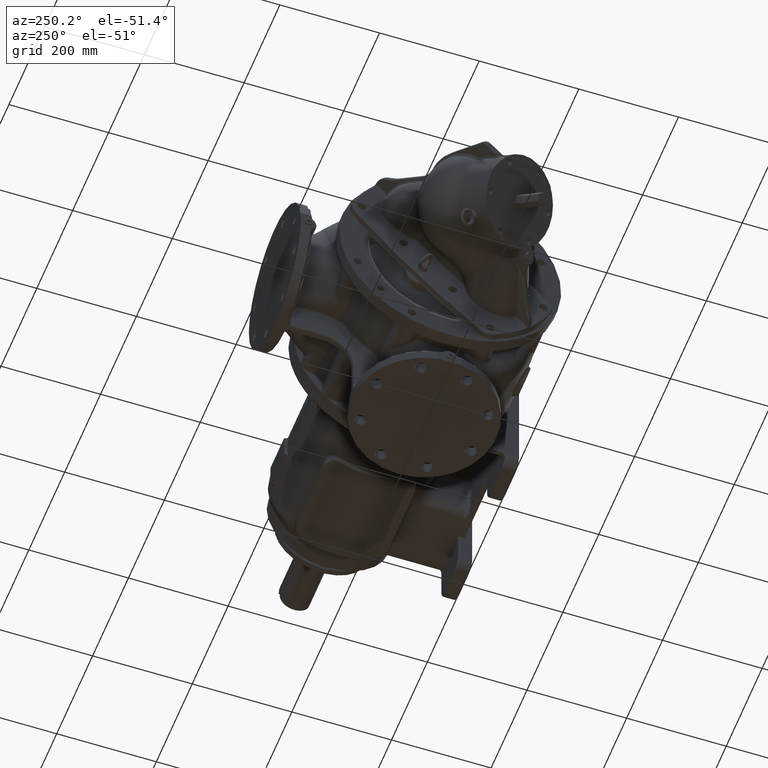
[diagram: clean part render]
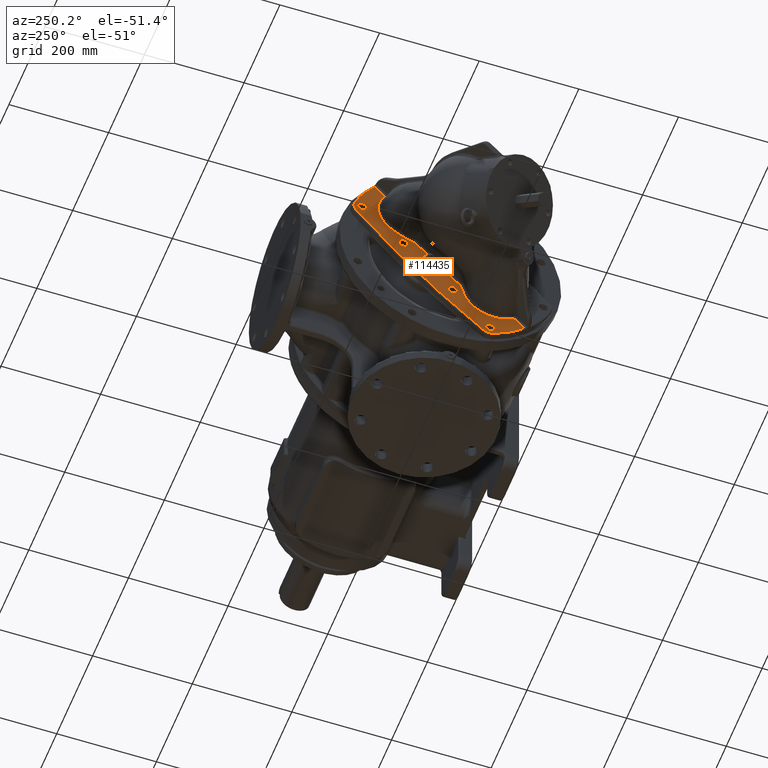
[diagram: same view with one face highlighted and labeled with its STEP entity id]
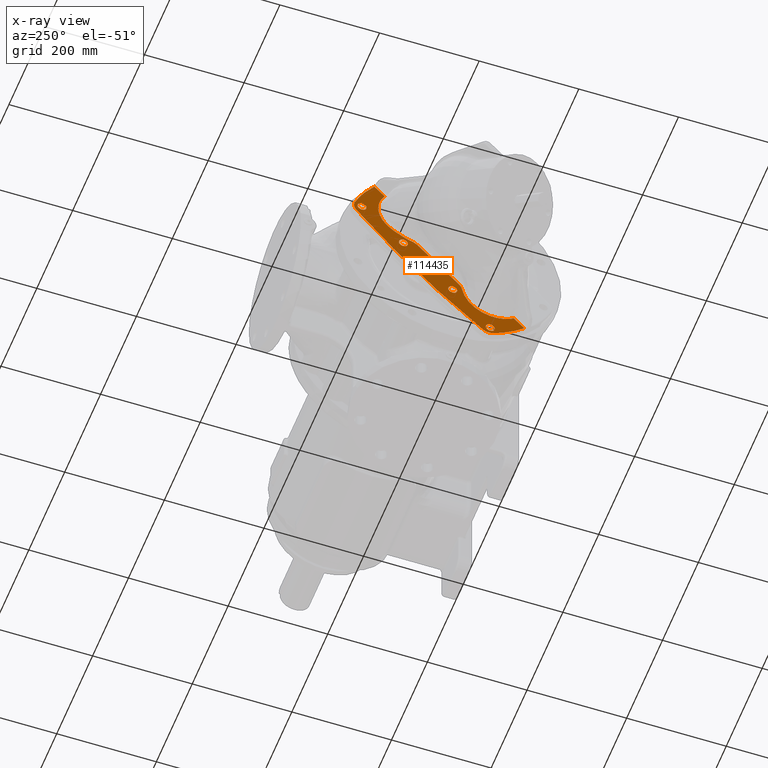
[diagram: x-ray of the same camera — body ghosted, the highlighted face saturated]
A machine part, auxiliary view. The second image highlights one B-rep face of the part: STEP entity #114435.
The next image is the same camera in x-ray: the body ghosted, the highlighted face saturated — about 0% of this face is hidden behind the body in this view.
In plain terms, the highlighted planar face has unit normal (0.9994, -0.0247, 0.0247).
Its self-contained STEP definition (entity closure, byte-faithful):
#29154=CARTESIAN_POINT('',(-2.976798618622E2,-1.782410176574E1,
-8.928612668927E1));
#29155=CARTESIAN_POINT('',(-2.976689368988E2,-1.792365347694E1,
-8.982888053443E1));
#29156=CARTESIAN_POINT('',(-2.976475004805E2,-1.813041828849E1,
-9.090269571460E1));
#29157=CARTESIAN_POINT('',(-2.976168143005E2,-1.846245213783E1,
-9.247788450997E1));
#29158=CARTESIAN_POINT('',(-2.975874688102E2,-1.881587235753E1,
-9.401961589259E1));
#29159=CARTESIAN_POINT('',(-2.975594327189E2,-1.919016671220E1,
-9.552934071794E1));
#29160=CARTESIAN_POINT('',(-2.975326515757E2,-1.958497454117E1,
-9.700871700732E1));
#29161=CARTESIAN_POINT('',(-2.975070802138E2,-2.000004754794E1,
-9.845937557415E1));
#29162=CARTESIAN_POINT('',(-2.974826741575E2,-2.043524924815E1,
-9.988296772198E1));
#29163=CARTESIAN_POINT('',(-2.974593930235E2,-2.089060321162E1,
-1.012811560355E2));
#29164=CARTESIAN_POINT('',(-2.974372036044E2,-2.136590098294E1,
-1.026550759281E2));
#29165=CARTESIAN_POINT('',(-2.974160725629E2,-2.186090116998E1,
-1.040058363514E2));
#29166=CARTESIAN_POINT('',(-2.973959693256E2,-2.237550759868E1,
-1.053345792114E2));
#29167=CARTESIAN_POINT('',(-2.973768678646E2,-2.290967806489E1,
-1.066423164030E2));
#29168=CARTESIAN_POINT('',(-2.973587585410E2,-2.346303109140E1,
-1.079290567913E2));
#29169=CARTESIAN_POINT('',(-2.973416305031E2,-2.403525080644E1,
-1.091949239785E2));
#29170=CARTESIAN_POINT('',(-2.973254744201E2,-2.462601403608E1,
-1.104399726673E2));
#29171=CARTESIAN_POINT('',(-2.973102786282E2,-2.523515125070E1,
-1.116645056849E2));
#29172=CARTESIAN_POINT('',(-2.972960114072E2,-2.586336803072E1,
-1.128705132105E2));
#29173=CARTESIAN_POINT('',(-2.972826402793E2,-2.651137469680E1,
-1.140600208439E2));
#29174=CARTESIAN_POINT('',(-2.972701474638E2,-2.717970173323E1,
-1.152342791442E2));
#29175=CARTESIAN_POINT('',(-2.972585401179E2,-2.786768665828E1,
-1.163923357838E2));
#29176=CARTESIAN_POINT('',(-2.972478206262E2,-2.857480450105E1,
-1.175335692197E2));
#29177=CARTESIAN_POINT('',(-2.972379906326E2,-2.930050709193E1,
-1.186573647067E2));
#29178=CARTESIAN_POINT('',(-2.972290494447E2,-3.004434598380E1,
-1.197633018422E2));
#29179=CARTESIAN_POINT('',(-2.972209965800E2,-3.080579702136E1,
-1.208508760016E2));
#29180=CARTESIAN_POINT('',(-2.972138286128E2,-3.158456353118E1,
-1.219199292534E2));
#29181=CARTESIAN_POINT('',(-2.972075403788E2,-3.238062818611E1,
-1.229706534115E2));
#29182=CARTESIAN_POINT('',(-2.972021258606E2,-3.319395337144E1,
-1.240032545550E2));
#29183=CARTESIAN_POINT('',(-2.971975825880E2,-3.402419445991E1,
-1.250174880869E2));
#29184=CARTESIAN_POINT('',(-2.971939096833E2,-3.487061038496E1,
-1.260126484886E2));
#29185=CARTESIAN_POINT('',(-2.971911045796E2,-3.573250562722E1,
-1.269881441969E2));
#29186=CARTESIAN_POINT('',(-2.971891634749E2,-3.660921750771E1,
-1.279434665036E2));
#29187=CARTESIAN_POINT('',(-2.971880815874E2,-3.750020998358E1,
-1.288782730205E2));
#29188=CARTESIAN_POINT('',(-2.971878536480E2,-3.840476909574E1,
-1.297920631728E2));
#29189=CARTESIAN_POINT('',(-2.971884736531E2,-3.932288878660E1,
-1.306850740339E2));
#29190=CARTESIAN_POINT('',(-2.971899399018E2,-4.025543713109E1,
-1.315582425633E2));
#29191=CARTESIAN_POINT('',(-2.971922509900E2,-4.120321275749E1,
-1.324124242565E2));
#29192=CARTESIAN_POINT('',(-2.971954048649E2,-4.216665632460E1,
-1.332481428973E2));
#29193=CARTESIAN_POINT('',(-2.971994003504E2,-4.314565344701E1,
-1.340653317355E2));
#29194=CARTESIAN_POINT('',(-2.972042379912E2,-4.414031802644E1,
-1.348640826108E2));
#29195=CARTESIAN_POINT('',(-2.972099174728E2,-4.515034087491E1,
-1.356440990763E2));
#29196=CARTESIAN_POINT('',(-2.972164337806E2,-4.617472314201E1,
-1.364045853593E2));
#29197=CARTESIAN_POINT('',(-2.972237801986E2,-4.721250467964E1,
-1.371448532948E2));
#29198=CARTESIAN_POINT('',(-2.972319495586E2,-4.826287777983E1,
-1.378643854688E2));
#29199=CARTESIAN_POINT('',(-2.972409374963E2,-4.932547991714E1,
-1.385629961020E2));
#29200=CARTESIAN_POINT('',(-2.972507392705E2,-5.039988742754E1,
-1.392404535379E2));
#29201=CARTESIAN_POINT('',(-2.972613488268E2,-5.148561895570E1,
-1.398965216143E2));
#29202=CARTESIAN_POINT('',(-2.972727583040E2,-5.258203934321E1,
-1.405308835287E2));
#29203=CARTESIAN_POINT('',(-2.972849599889E2,-5.368856945080E1,
-1.411432725140E2));
#29204=CARTESIAN_POINT('',(-2.972979440447E2,-5.480447336532E1,
-1.417333510206E2));
#29205=CARTESIAN_POINT('',(-2.973116945692E2,-5.592858896045E1,
-1.423006009298E2));
#29206=CARTESIAN_POINT('',(-2.973261932337E2,-5.705970002868E1,
-1.428445483061E2));
#29207=CARTESIAN_POINT('',(-2.973414242951E2,-5.819692309804E1,
-1.433649472350E2));
#29208=CARTESIAN_POINT('',(-2.973573953464E2,-5.934107981804E1,
-1.438623118720E2));
#29209=CARTESIAN_POINT('',(-2.973741153309E2,-6.049285078861E1,
-1.443369606247E2));
#29210=CARTESIAN_POINT('',(-2.973915949863E2,-6.165297141888E1,
-1.447891940562E2));
#29211=CARTESIAN_POINT('',(-2.974098403615E2,-6.282198568674E1,
-1.452193111738E2));
#29212=CARTESIAN_POINT('',(-2.974288615152E2,-6.400052069183E1,
-1.456275317198E2));
#29213=CARTESIAN_POINT('',(-2.974486692225E2,-6.518910975935E1,
-1.460139526593E2));
#29214=CARTESIAN_POINT('',(-2.974692464147E2,-6.638657770712E1,
-1.463780900514E2));
#29215=CARTESIAN_POINT('',(-2.974905753614E2,-6.759181312949E1,
-1.467195505302E2));
#29216=CARTESIAN_POINT('',(-2.975126363166E2,-6.880366960638E1,
-1.470379873468E2));
#29217=CARTESIAN_POINT('',(-2.975354151313E2,-7.002137233738E1,
-1.473331987029E2));
#29218=CARTESIAN_POINT('',(-2.975588968005E2,-7.124413259507E1,
-1.476050035375E2));
#29219=CARTESIAN_POINT('',(-2.975830655639E2,-7.247115957144E1,
-1.478532493052E2));
#29220=CARTESIAN_POINT('',(-2.976079051857E2,-7.370166190002E1,
-1.480778021509E2));
#29221=CARTESIAN_POINT('',(-2.976333989567E2,-7.493485264077E1,
-1.482785518176E2));
#29222=CARTESIAN_POINT('',(-2.976595289106E2,-7.616991390211E1,
-1.484554080133E2));
#29223=CARTESIAN_POINT('',(-2.976862677013E2,-7.740563091533E1,
-1.486082634229E2));
#29224=CARTESIAN_POINT('',(-2.977135862612E2,-7.864077722870E1,
-1.487370687687E2));
#29225=CARTESIAN_POINT('',(-2.977414563844E2,-7.987423701739E1,
-1.488418505039E2));
#29226=CARTESIAN_POINT('',(-2.977698836522E2,-8.110639551305E1,
-1.489227678252E2));
#29227=CARTESIAN_POINT('',(-2.977988721110E2,-8.233750500787E1,
-1.489799091559E2));
#29228=CARTESIAN_POINT('',(-2.978284334267E2,-8.356806502104E1,
-1.490133015762E2));
#29229=CARTESIAN_POINT('',(-2.978585966042E2,-8.479928396077E1,
-1.490229788580E2));
#29230=CARTESIAN_POINT('',(-2.978893925148E2,-8.603245896532E1,
-1.490089879165E2));
#29231=CARTESIAN_POINT('',(-2.979208358296E2,-8.726809214290E1,
-1.489712367190E2));
#29232=CARTESIAN_POINT('',(-2.979528995235E2,-8.850503259751E1,
-1.489096688233E2));
#29233=CARTESIAN_POINT('',(-2.979855624309E2,-8.974240191846E1,
-1.488242629805E2));
#29234=CARTESIAN_POINT('',(-2.980188016733E2,-9.097928360736E1,
-1.487150292180E2));
#29235=CARTESIAN_POINT('',(-2.980525952650E2,-9.221482374232E1,
-1.485820039853E2));
#29236=CARTESIAN_POINT('',(-2.980869202404E2,-9.344815753012E1,
-1.484252525480E2));
#29237=CARTESIAN_POINT('',(-2.981217527457E2,-9.467841420528E1,
-1.482448701653E2));
#29238=CARTESIAN_POINT('',(-2.981570698838E2,-9.590478238768E1,
-1.480409727357E2));
#29239=CARTESIAN_POINT('',(-2.981928494653E2,-9.712650114493E1,
-1.478136979547E2));
#29240=CARTESIAN_POINT('',(-2.982290689507E2,-9.834282035898E1,
-1.475632084991E2));
#29241=CARTESIAN_POINT('',(-2.982657035593E2,-9.955293995341E1,
-1.472897078549E2));
#29242=CARTESIAN_POINT('',(-2.983027368645E2,-1.007563568042E2,
-1.469933581413E2));
#29243=CARTESIAN_POINT('',(-2.983401607752E2,-1.019528372665E2,
-1.466742533864E2));
#29244=CARTESIAN_POINT('',(-2.983779653077E2,-1.031420802806E2,
-1.463324968424E2));
#29245=CARTESIAN_POINT('',(-2.984161425909E2,-1.043238376028E2,
-1.459681590329E2));
#29246=CARTESIAN_POINT('',(-2.984546683390E2,-1.054973807552E2,
-1.455814949998E2));
#29247=CARTESIAN_POINT('',(-2.984935157527E2,-1.066619451326E2,
-1.451728254542E2));
#29248=CARTESIAN_POINT('',(-2.985326568962E2,-1.078167470130E2,
-1.447424980008E2));
#29249=CARTESIAN_POINT('',(-2.985720694158E2,-1.089611883852E2,
-1.442908199147E2));
#29250=CARTESIAN_POINT('',(-2.986117513329E2,-1.100952571347E2,
-1.438178592041E2));
#29251=CARTESIAN_POINT('',(-2.986516988684E2,-1.112188637800E2,
-1.433236794357E2));
#29252=CARTESIAN_POINT('',(-2.986919079457E2,-1.123318832401E2,
-1.428083206160E2));
#29253=CARTESIAN_POINT('',(-2.987323965924E2,-1.134348017360E2,
-1.422715389010E2));
#29254=CARTESIAN_POINT('',(-2.987731828975E2,-1.145281519167E2,
-1.417131343330E2));
#29255=CARTESIAN_POINT('',(-2.988142922523E2,-1.156125837121E2,
-1.411327287259E2));
#29256=CARTESIAN_POINT('',(-2.988557165155E2,-1.166878173385E2,
-1.405303713274E2));
#29257=CARTESIAN_POINT('',(-2.988974198765E2,-1.177528648054E2,
-1.399065269155E2));
#29258=CARTESIAN_POINT('',(-2.989393720995E2,-1.188069214819E2,
-1.392616059403E2));
#29259=CARTESIAN_POINT('',(-2.989815407861E2,-1.198491303208E2,
-1.385960985104E2));
#29260=CARTESIAN_POINT('',(-2.990238940265E2,-1.208787631262E2,
-1.379104377236E2));
#29261=CARTESIAN_POINT('',(-2.990522304843E2,-1.215560677980E2,
-1.374403815337E2));
#29262=CARTESIAN_POINT('',(-2.990664214278E2,-1.218924999704E2,
-1.372020725113E2));
#29264=DIRECTION('',(8.262822950811E-8,-7.071067836340E-1,-7.071067787391E-1));
#29265=VECTOR('',#29264,2.952249777142E1);
#29266=CARTESIAN_POINT('',(-2.990664214278E2,-1.218924999704E2,
-1.372020725113E2));
#29267=LINE('',#29266,#29265);
#29268=CARTESIAN_POINT('',(-2.966541247498E2,-8.314309126022E1,
-1.961452196457E2));
#29269=CARTESIAN_POINT('',(-2.966860730915E2,-8.405141458099E1,
-1.957597061213E2));
#29270=CARTESIAN_POINT('',(-2.967501472426E2,-8.586264827713E1,
-1.949760790889E2));
#29271=CARTESIAN_POINT('',(-2.968468026413E2,-8.856358640036E1,
-1.937626883536E2));
#29272=CARTESIAN_POINT('',(-2.969439674231E2,-9.124761728891E1,
-1.925117615014E2));
#29273=CARTESIAN_POINT('',(-2.970416207478E2,-9.391416119580E1,
-1.912235627649E2));
#29274=CARTESIAN_POINT('',(-2.971397379849E2,-9.656254190797E1,
-1.898984134172E2));
#29275=CARTESIAN_POINT('',(-2.972383005789E2,-9.919226065725E1,
-1.885365661378E2));
#29276=CARTESIAN_POINT('',(-2.973372919003E2,-1.018028699646E2,
-1.871382469098E2));
#29277=CARTESIAN_POINT('',(-2.974366912140E2,-1.043938217636E2,
-1.857037473899E2));
#29278=CARTESIAN_POINT('',(-2.975364781868E2,-1.069645852438E2,
-1.842333602221E2));
#29279=CARTESIAN_POINT('',(-2.976366338174E2,-1.095146703110E2,
-1.827273648195E2));
#29280=CARTESIAN_POINT('',(-2.977371385786E2,-1.120435800141E2,
-1.811860550404E2));
#29281=CARTESIAN_POINT('',(-2.978379728908E2,-1.145508205430E2,
-1.796097300028E2));
#29282=CARTESIAN_POINT('',(-2.979391170261E2,-1.170359020704E2,
-1.779986988157E2));
#29283=CARTESIAN_POINT('',(-2.980405513537E2,-1.194983418730E2,
-1.763532737605E2));
#29284=CARTESIAN_POINT('',(-2.981422566707E2,-1.219376739701E2,
-1.746737665321E2));
#29285=CARTESIAN_POINT('',(-2.982442128537E2,-1.243534154673E2,
-1.729605091878E2));
#29286=CARTESIAN_POINT('',(-2.983463984681E2,-1.267450590619E2,
-1.712138624790E2));
#29287=CARTESIAN_POINT('',(-2.984487937893E2,-1.291121447786E2,
-1.694341652348E2));
#29288=CARTESIAN_POINT('',(-2.985513814311E2,-1.314542736054E2,
-1.676217225394E2));
#29289=CARTESIAN_POINT('',(-2.986541421584E2,-1.337710018261E2,
-1.657768696627E2));
#29290=CARTESIAN_POINT('',(-2.987570509093E2,-1.360617681273E2,
-1.639000602403E2));
#29291=CARTESIAN_POINT('',(-2.988600826182E2,-1.383260158259E2,
-1.619917526888E2));
#29292=CARTESIAN_POINT('',(-2.989632136855E2,-1.405632399290E2,
-1.600523977480E2));
#29293=CARTESIAN_POINT('',(-2.990320089637E2,-1.420361790767E2,
-1.587392810074E2));
#29294=CARTESIAN_POINT('',(-2.990664189884E2,-1.427680584144E2,
-1.580776308108E2));
#29296=CARTESIAN_POINT('',(-2.961771773409E2,-6.054196936692E1,
-1.928594079227E2));
#29297=CARTESIAN_POINT('',(-2.961777787358E2,-6.068147997850E1,
-1.929745633782E2));
#29298=CARTESIAN_POINT('',(-2.961791389077E2,-6.096367378229E1,
-1.932016732422E2));
#29299=CARTESIAN_POINT('',(-2.961816553696E2,-6.139683182168E1,
-1.935329201668E2));
#29300=CARTESIAN_POINT('',(-2.961846453580E2,-6.183898227906E1,
-1.938539827377E2));
#29301=CARTESIAN_POINT('',(-2.961881060113E2,-6.228954111543E1,
-1.941643928083E2));
#29302=CARTESIAN_POINT('',(-2.961920324988E2,-6.274780769492E1,
-1.944636453704E2));
#29303=CARTESIAN_POINT('',(-2.961964187151E2,-6.321309218899E1,
-1.947512978509E2));
#29304=CARTESIAN_POINT('',(-2.962012563963E2,-6.368462640303E1,
-1.950269167244E2));
#29305=CARTESIAN_POINT('',(-2.962065423060E2,-6.416220321804E1,
-1.952904259441E2));
#29306=CARTESIAN_POINT('',(-2.962122748320E2,-6.464570651101E1,
-1.955417746727E2));
#29307=CARTESIAN_POINT('',(-2.962184529629E2,-6.513499708881E1,
-1.957808646797E2));
#29308=CARTESIAN_POINT('',(-2.962250759147E2,-6.563008176653E1,
-1.960077345257E2));
#29309=CARTESIAN_POINT('',(-2.962321435379E2,-6.613098339187E1,
-1.962224131183E2));
#29310=CARTESIAN_POINT('',(-2.962396583572E2,-6.663782289193E1,
-1.964249191368E2));
#29311=CARTESIAN_POINT('',(-2.962476123933E2,-6.714998684818E1,
-1.966149623039E2));
#29312=CARTESIAN_POINT('',(-2.962559938875E2,-6.766669400169E1,
-1.967922375683E2));
#29313=CARTESIAN_POINT('',(-2.962647888333E2,-6.818711411392E1,
-1.969564819202E2));
#29314=CARTESIAN_POINT('',(-2.962739926071E2,-6.871101951206E1,
-1.971076549343E2));
#29315=CARTESIAN_POINT('',(-2.962836037672E2,-6.923833735369E1,
-1.972457421481E2));
#29316=CARTESIAN_POINT('',(-2.962936210807E2,-6.976896334505E1,
-1.973706892033E2));
#29317=CARTESIAN_POINT('',(-2.963040425645E2,-7.030280768042E1,
-1.974824866051E2));
#29318=CARTESIAN_POINT('',(-2.963148664566E2,-7.083978074347E1,
-1.975811160916E2));
#29319=CARTESIAN_POINT('',(-2.963260919810E2,-7.137980049044E1,
-1.976665270477E2));
#29320=CARTESIAN_POINT('',(-2.963377029762E2,-7.192204893951E1,
-1.977385559906E2));
#29321=CARTESIAN_POINT('',(-2.963496808478E2,-7.246565817627E1,
-1.977970880469E2));
#29322=CARTESIAN_POINT('',(-2.963620086533E2,-7.300989233541E1,
-1.978420734761E2));
#29323=CARTESIAN_POINT('',(-2.963746833281E2,-7.355464575873E1,
-1.978735307396E2));
#29324=CARTESIAN_POINT('',(-2.963877007359E2,-7.409973452752E1,
-1.978914434206E2));
#29325=CARTESIAN_POINT('',(-2.964010577934E2,-7.464503041896E1,
-1.978958081618E2));
#29326=CARTESIAN_POINT('',(-2.964147511546E2,-7.519041889099E1,
-1.978866459357E2));
#29327=CARTESIAN_POINT('',(-2.964287805055E2,-7.573587261304E1,
-1.978639421247E2));
#29328=CARTESIAN_POINT('',(-2.964431324581E2,-7.628084686987E1,
-1.978276941941E2));
#29329=CARTESIAN_POINT('',(-2.964577854615E2,-7.682451940684E1,
-1.977779526546E2));
#29330=CARTESIAN_POINT('',(-2.964727164712E2,-7.736606468806E1,
-1.977148252238E2));
#29331=CARTESIAN_POINT('',(-2.964879242630E2,-7.790546849335E1,
-1.976383472548E2));
#29332=CARTESIAN_POINT('',(-2.965034124385E2,-7.844285116040E1,
-1.975484932345E2));
#29333=CARTESIAN_POINT('',(-2.965191838249E2,-7.897827435521E1,
-1.974452103263E2));
#29334=CARTESIAN_POINT('',(-2.965352318967E2,-7.951152887840E1,
-1.973285536055E2));
#29335=CARTESIAN_POINT('',(-2.965515510127E2,-8.004241854E1,-1.971985553331E2));
#29336=CARTESIAN_POINT('',(-2.965681349841E2,-8.057071172671E1,
-1.970552345318E2));
#29337=CARTESIAN_POINT('',(-2.965849579452E2,-8.109555681822E1,
-1.968987870856E2));
#29338=CARTESIAN_POINT('',(-2.966019940664E2,-8.161614343915E1,
-1.967294486557E2));
#29339=CARTESIAN_POINT('',(-2.966192156561E2,-8.213164147936E1,
-1.965475105813E2));
#29340=CARTESIAN_POINT('',(-2.966365980890E2,-8.264134336798E1,
-1.963532625678E2));
#29341=CARTESIAN_POINT('',(-2.966482676768E2,-8.297656172680E1,
-1.962158885525E2));
#29342=CARTESIAN_POINT('',(-2.966541247498E2,-8.314309126022E1,
-1.961452196457E2));
#29344=CARTESIAN_POINT('',(-2.961771773409E2,1.928594079227E2,
6.054196936692E1));
#29345=CARTESIAN_POINT('',(-2.961639296111E2,1.903205715803E2,
5.746662940422E1));
#29346=CARTESIAN_POINT('',(-2.961383153698E2,1.852234612762E2,
5.133219925032E1));
#29347=CARTESIAN_POINT('',(-2.961025363749E2,1.775193387002E2,
4.217910689125E1));
#29348=CARTESIAN_POINT('',(-2.960694017102E2,1.697572339959E2,
3.307512189703E1));
#29349=CARTESIAN_POINT('',(-2.960389124910E2,1.619374556886E2,
2.402059796699E1));
#29350=CARTESIAN_POINT('',(-2.960110700805E2,1.540603561902E2,
1.501594271650E1));
#29351=CARTESIAN_POINT('',(-2.959858758080E2,1.461262761934E2,
6.061550672432E0));
#29352=CARTESIAN_POINT('',(-2.959633310001E2,1.381355568286E2,
-2.842183315244E0));
#29353=CARTESIAN_POINT('',(-2.959434371381E2,1.300885467303E2,
-1.169485061401E1));
#29354=CARTESIAN_POINT('',(-2.959261946334E2,1.219855276391E2,
-2.049615282815E1));
#29355=CARTESIAN_POINT('',(-2.959116036848E2,1.138267631890E2,
-2.924581827319E1));
#29356=CARTESIAN_POINT('',(-2.958996646346E2,1.056125154910E2,
-3.794357097287E1));
#29357=CARTESIAN_POINT('',(-2.958903779110E2,9.734306075826E1,
-4.658911737404E1));
#29358=CARTESIAN_POINT('',(-2.958837440747E2,8.901877564677E1,
-5.518205811567E1));
#29359=CARTESIAN_POINT('',(-2.958797635834E2,8.064002876680E1,
-6.372200604774E1));
#29360=CARTESIAN_POINT('',(-2.958784369198E2,7.220718981022E1,
-7.220857192980E1));
#29361=CARTESIAN_POINT('',(-2.958797641187E2,6.372064317478E1,
-8.064136995992E1));
#29362=CARTESIAN_POINT('',(-2.958837448249E2,5.518078793260E1,
-8.902001544876E1));
#29363=CARTESIAN_POINT('',(-2.958903786816E2,4.658801749499E1,
-9.734412942991E1));
#29364=CARTESIAN_POINT('',(-2.958996652092E2,3.794274447463E1,
-1.056133187185E2));
#29365=CARTESIAN_POINT('',(-2.959116040519E2,2.924524099258E1,
-1.138273256054E2));
#29366=CARTESIAN_POINT('',(-2.959261949982E2,2.049574586299E1,
-1.219859198336E2));
#29367=CARTESIAN_POINT('',(-2.959434379510E2,1.169450181790E1,
-1.300888626066E2));
#29368=CARTESIAN_POINT('',(-2.959633328714E2,2.841755118124E0,
-1.381359092409E2));
#29369=CARTESIAN_POINT('',(-2.959858783667E2,-6.062066661210E0,
-1.461266885637E2));
#29370=CARTESIAN_POINT('',(-2.960110730869E2,-1.501654294635E1,
-1.540608346682E2));
#29371=CARTESIAN_POINT('',(-2.960389156622E2,-2.402125017239E1,
-1.619379794659E2));
#29372=CARTESIAN_POINT('',(-2.960694047406E2,-3.307576930841E1,
-1.697577586829E2));
#29373=CARTESIAN_POINT('',(-2.961025388993E2,-4.217966568764E1,
-1.775197952654E2));
#29374=CARTESIAN_POINT('',(-2.961383169605E2,-5.133256209745E1,
-1.852237597044E2));
#29375=CARTESIAN_POINT('',(-2.961639301988E2,-5.746676504761E1,
-1.903206834217E2));
#29376=CARTESIAN_POINT('',(-2.961771773409E2,-6.054196936692E1,
-1.928594079227E2));
#29378=CARTESIAN_POINT('',(-2.966541247498E2,1.961452196457E2,
8.314309126022E1));
#29379=CARTESIAN_POINT('',(-2.966482639752E2,1.962159303617E2,
8.297645362881E1));
#29380=CARTESIAN_POINT('',(-2.966365881688E2,1.963533722834E2,
8.264105133911E1));
#29381=CARTESIAN_POINT('',(-2.966192001702E2,1.965476756083E2,
8.213117936067E1));
#29382=CARTESIAN_POINT('',(-2.966019759532E2,1.967296347453E2,
8.161559598539E1));
#29383=CARTESIAN_POINT('',(-2.965849395889E2,1.968989682165E2,
8.109499456216E1));
#29384=CARTESIAN_POINT('',(-2.965681182175E2,1.970553924329E2,
8.057019061606E1));
#29385=CARTESIAN_POINT('',(-2.965515368834E2,1.971986805706E2,
8.004197157165E1));
#29386=CARTESIAN_POINT('',(-2.965352216458E2,1.973286368914E2,
7.951119702734E1));
#29387=CARTESIAN_POINT('',(-2.965191782948E2,1.974452482031E2,
7.897808827352E1));
#29388=CARTESIAN_POINT('',(-2.965034103481E2,1.975484995479E2,
7.844277281863E1));
#29389=CARTESIAN_POINT('',(-2.964879231455E2,1.976383373841E2,
7.790541336462E1));
#29390=CARTESIAN_POINT('',(-2.964727154344E2,1.977147974370E2,
7.736599491322E1));
#29391=CARTESIAN_POINT('',(-2.964577859909E2,1.977779017062E2,
7.682448989502E1));
#29392=CARTESIAN_POINT('',(-2.964431322789E2,1.978276346394E2,
7.628078005834E1));
#29393=CARTESIAN_POINT('',(-2.964287734084E2,1.978638941177E2,
7.573553719005E1));
#29394=CARTESIAN_POINT('',(-2.964147316873E2,1.978866118225E2,
7.518959639407E1));
#29395=CARTESIAN_POINT('',(-2.964010289478E2,1.978957736253E2,
7.464382769647E1));
#29396=CARTESIAN_POINT('',(-2.963876701600E2,1.978914070043E2,
7.409845985758E1));
#29397=CARTESIAN_POINT('',(-2.963746569576E2,1.978735201850E2,
7.355356725795E1));
#29398=CARTESIAN_POINT('',(-2.963619927033E2,1.978420921801E2,
7.300926509753E1));
#29399=CARTESIAN_POINT('',(-2.963496791688E2,1.977971409801E2,
7.246564311495E1));
#29400=CARTESIAN_POINT('',(-2.963377183883E2,1.977386760172E2,
7.192279312244E1));
#29401=CARTESIAN_POINT('',(-2.963261132856E2,1.976666738083E2,
7.138081004128E1));
#29402=CARTESIAN_POINT('',(-2.963148824663E2,1.975812124007E2,
7.084052541038E1));
#29403=CARTESIAN_POINT('',(-2.963040438532E2,1.974824306007E2,
7.030280386618E1));
#29404=CARTESIAN_POINT('',(-2.962936111317E2,1.973704915712E2,
6.976836279905E1));
#29405=CARTESIAN_POINT('',(-2.962835854221E2,1.972454441957E2,
6.923729646480E1));
#29406=CARTESIAN_POINT('',(-2.962739702307E2,1.971073262105E2,
6.870978459306E1));
#29407=CARTESIAN_POINT('',(-2.962647677299E2,1.969561721657E2,
6.818594971837E1));
#29408=CARTESIAN_POINT('',(-2.962559791407E2,1.967920360903E2,
6.766589531069E1));
#29409=CARTESIAN_POINT('',(-2.962476053209E2,1.966149128726E2,
6.714965100012E1));
#29410=CARTESIAN_POINT('',(-2.962396554078E2,1.964249574616E2,
6.663774177496E1));
#29411=CARTESIAN_POINT('',(-2.962321414865E2,1.962224540846E2,
6.613094128103E1));
#29412=CARTESIAN_POINT('',(-2.962250739319E2,1.960077425564E2,
6.563000949745E1));
#29413=CARTESIAN_POINT('',(-2.962184517881E2,1.957808601285E2,
6.513494496019E1));
#29414=CARTESIAN_POINT('',(-2.962122737724E2,1.955417479280E2,
6.464563685385E1));
#29415=CARTESIAN_POINT('',(-2.962065404158E2,1.952903376970E2,
6.416203842319E1));
#29416=CARTESIAN_POINT('',(-2.962012534618E2,1.950267426879E2,
6.368433352377E1));
#29417=CARTESIAN_POINT('',(-2.961964151358E2,1.947510498085E2,
6.321269919463E1));
#29418=CARTESIAN_POINT('',(-2.961920286750E2,1.944633440166E2,
6.274735148756E1));
#29419=CARTESIAN_POINT('',(-2.961881022092E2,1.941640569960E2,
6.228905132621E1));
#29420=CARTESIAN_POINT('',(-2.961846419519E2,1.938536462763E2,
6.183850787793E1));
#29421=CARTESIAN_POINT('',(-2.961816527379E2,1.935326284847E2,
6.139643355913E1));
#29422=CARTESIAN_POINT('',(-2.961791374116E2,1.932014837156E2,
6.096342366676E1));
#29423=CARTESIAN_POINT('',(-2.961777782188E2,1.929744920702E2,
6.068138773496E1));
#29424=CARTESIAN_POINT('',(-2.961771773409E2,1.928594079227E2,
6.054196936692E1));
#29426=CARTESIAN_POINT('',(-2.990664189872E2,1.580776308340E2,
1.427680583883E2));
#29427=CARTESIAN_POINT('',(-2.990320011503E2,1.587394313254E2,
1.420360129698E2));
#29428=CARTESIAN_POINT('',(-2.989631919513E2,1.600528121418E2,
1.405627741365E2));
#29429=CARTESIAN_POINT('',(-2.988600450696E2,1.619924564824E2,
1.383251989824E2));
#29430=CARTESIAN_POINT('',(-2.987570027046E2,1.639009463462E2,
1.360607020484E2));
#29431=CARTESIAN_POINT('',(-2.986540870563E2,1.657778673524E2,
1.337697680032E2));
#29432=CARTESIAN_POINT('',(-2.985513241632E2,1.676227419159E2,
1.314529737584E2));
#29433=CARTESIAN_POINT('',(-2.984487335533E2,1.694352221990E2,
1.291107623196E2));
#29434=CARTESIAN_POINT('',(-2.983463325513E2,1.712149993294E2,
1.267435264274E2));
#29435=CARTESIAN_POINT('',(-2.982441425269E2,1.729617014167E2,
1.243517596172E2));
#29436=CARTESIAN_POINT('',(-2.981421844759E2,1.746749694726E2,
1.219359531816E2));
#29437=CARTESIAN_POINT('',(-2.980404778368E2,1.763544771737E2,
1.194965680154E2));
#29438=CARTESIAN_POINT('',(-2.979390424265E2,1.779998982279E2,
1.170340803648E2));
#29439=CARTESIAN_POINT('',(-2.978378980294E2,1.796109113450E2,
1.145489701665E2));
#29440=CARTESIAN_POINT('',(-2.977370644073E2,1.811872033424E2,
1.120417245427E2));
#29441=CARTESIAN_POINT('',(-2.976365611441E2,1.827284683228E2,
1.095128307070E2));
#29442=CARTESIAN_POINT('',(-2.975364072536E2,1.842344158779E2,
1.069627682604E2));
#29443=CARTESIAN_POINT('',(-2.974366225071E2,1.857047490803E2,
1.043920409743E2));
#29444=CARTESIAN_POINT('',(-2.973372278530E2,1.871391607880E2,
1.018011900718E2));
#29445=CARTESIAN_POINT('',(-2.972382424915E2,1.885373762383E2,
9.919071834810E1));
#29446=CARTESIAN_POINT('',(-2.971396831642E2,1.898991629488E2,
9.656107132455E1));
#29447=CARTESIAN_POINT('',(-2.970415683457E2,1.912242616447E2,
9.391273790462E1));
#29448=CARTESIAN_POINT('',(-2.969439218513E2,1.925123553260E2,
9.124636555805E1));
#29449=CARTESIAN_POINT('',(-2.968467674240E2,1.937631329291E2,
8.856260475539E1));
#29450=CARTESIAN_POINT('',(-2.967501270021E2,1.949763271144E2,
8.586207661042E1));
#29451=CARTESIAN_POINT('',(-2.966860658442E2,1.957597934877E2,
8.405120844834E1));
#29452=CARTESIAN_POINT('',(-2.966541247498E2,1.961452196457E2,
8.314309126022E1));
#29454=DIRECTION('',(-6.784951874589E-7,-7.071067740743E-1,-7.071067882985E-1));
#29455=VECTOR('',#29454,2.904444512696E1);
#29456=CARTESIAN_POINT('',(-2.990664189872E2,1.580776308340E2,
1.427680583883E2));
#29457=LINE('',#29456,#29455);
#29458=CARTESIAN_POINT('',(-2.990664386937E2,1.375401069355E2,
1.222305340767E2));
#29459=CARTESIAN_POINT('',(-2.990522015263E2,1.377814523799E2,
1.218953748771E2));
#29460=CARTESIAN_POINT('',(-2.990237442436E2,1.382579458125E2,
1.212204796374E2));
#29461=CARTESIAN_POINT('',(-2.989812184740E2,1.389542286726E2,
1.201941340635E2));
#29462=CARTESIAN_POINT('',(-2.989388213905E2,1.396314528857E2,
1.191544856308E2));
#29463=CARTESIAN_POINT('',(-2.988965908967E2,1.402892277986E2,
1.181019885710E2));
#29464=CARTESIAN_POINT('',(-2.988545459994E2,1.409271588223E2,
1.170372029452E2));
#29465=CARTESIAN_POINT('',(-2.988127102964E2,1.415449229191E2,
1.159607118292E2));
#29466=CARTESIAN_POINT('',(-2.987711056456E2,1.421422032650E2,
1.148730968638E2));
#29467=CARTESIAN_POINT('',(-2.987297551316E2,1.427186871397E2,
1.137749766520E2));
#29468=CARTESIAN_POINT('',(-2.986886749100E2,1.432741666898E2,
1.126667985629E2));
#29469=CARTESIAN_POINT('',(-2.986478781135E2,1.438084753253E2,
1.115489275857E2));
#29470=CARTESIAN_POINT('',(-2.986073786727E2,1.443214356033E2,
1.104217505157E2));
#29471=CARTESIAN_POINT('',(-2.985671899014E2,1.448128719064E2,
1.092856308879E2));
#29472=CARTESIAN_POINT('',(-2.985273287474E2,1.452825852210E2,
1.081410560473E2));
#29473=CARTESIAN_POINT('',(-2.984878124537E2,1.457304101223E2,
1.069885588688E2));
#29474=CARTESIAN_POINT('',(-2.984486579014E2,1.461561856913E2,
1.058286620793E2));
#29475=CARTESIAN_POINT('',(-2.984098820133E2,1.465597589180E2,
1.046618980061E2));
#29476=CARTESIAN_POINT('',(-2.983714984634E2,1.469410148497E2,
1.034887054646E2));
#29477=CARTESIAN_POINT('',(-2.983335205978E2,1.472998423740E2,
1.023095138260E2));
#29478=CARTESIAN_POINT('',(-2.982959617132E2,1.476361313579E2,
1.011247514498E2));
#29479=CARTESIAN_POINT('',(-2.982588350979E2,1.479497729724E2,
9.993484764893E1));
#29480=CARTESIAN_POINT('',(-2.982221520564E2,1.482406737683E2,
9.874016678124E1));
#29481=CARTESIAN_POINT('',(-2.981859228033E2,1.485088025610E2,
9.754109133348E1));
#29482=CARTESIAN_POINT('',(-2.981501576791E2,1.487541241866E2,
9.633800490854E1));
#29483=CARTESIAN_POINT('',(-2.981148667236E2,1.489766000565E2,
9.513127550342E1));
#29484=CARTESIAN_POINT('',(-2.980800654482E2,1.491761566451E2,
9.392145777736E1));
#29485=CARTESIAN_POINT('',(-2.980457695548E2,1.493527283957E2,
9.270912205816E1));
#29486=CARTESIAN_POINT('',(-2.980119943548E2,1.495062594386E2,
9.149483255570E1));
#29487=CARTESIAN_POINT('',(-2.979787549295E2,1.496367068783E2,
9.027915713584E1));
#29488=CARTESIAN_POINT('',(-2.979460596291E2,1.497440494035E2,
8.906241265245E1));
#29489=CARTESIAN_POINT('',(-2.979139161242E2,1.498282942741E2,
8.784491700472E1));
#29490=CARTESIAN_POINT('',(-2.978823312766E2,1.498894834447E2,
8.662699003811E1));
#29491=CARTESIAN_POINT('',(-2.978513124942E2,1.499276390356E2,
8.540895387304E1));
#29492=CARTESIAN_POINT('',(-2.978208733664E2,1.499427760355E2,
8.419137383757E1));
#29493=CARTESIAN_POINT('',(-2.977910268285E2,1.499349192614E2,
8.297479860654E1));
#29494=CARTESIAN_POINT('',(-2.977617862857E2,1.499041026100E2,
8.175980494952E1));
#29495=CARTESIAN_POINT('',(-2.977331617551E2,1.498503674416E2,
8.054683990180E1));
#29496=CARTESIAN_POINT('',(-2.977051596006E2,1.497737345180E2,
7.933618194743E1));
#29497=CARTESIAN_POINT('',(-2.976777862127E2,1.496742612443E2,
7.812814729663E1));
#29498=CARTESIAN_POINT('',(-2.976510467293E2,1.495520248626E2,
7.692302125686E1));
#29499=CARTESIAN_POINT('',(-2.976249507173E2,1.494071073932E2,
7.572127329409E1));
#29500=CARTESIAN_POINT('',(-2.975995081838E2,1.492396010437E2,
7.452340087494E1));
#29501=CARTESIAN_POINT('',(-2.975747290566E2,1.490496028020E2,
7.332990304667E1));
#29502=CARTESIAN_POINT('',(-2.975506216067E2,1.488372041132E2,
7.214120621113E1));
#29503=CARTESIAN_POINT('',(-2.975271935782E2,1.486024815473E2,
7.095770055039E1));
#29504=CARTESIAN_POINT('',(-2.975044517126E2,1.483455486241E2,
6.977977261107E1));
#29505=CARTESIAN_POINT('',(-2.974824027677E2,1.480665469876E2,
6.860783770111E1));
#29506=CARTESIAN_POINT('',(-2.974610543368E2,1.477656228393E2,
6.744234954586E1));
#29507=CARTESIAN_POINT('',(-2.974404138445E2,1.474429257854E2,
6.628375842138E1));
#29508=CARTESIAN_POINT('',(-2.974204878583E2,1.470985964138E2,
6.513247088738E1));
#29509=CARTESIAN_POINT('',(-2.974012827297E2,1.467327603867E2,
6.398886983152E1));
#29510=CARTESIAN_POINT('',(-2.973828040275E2,1.463455716934E2,
6.285333476340E1));
#29511=CARTESIAN_POINT('',(-2.973650558616E2,1.459371978426E2,
6.172619963054E1));
#29512=CARTESIAN_POINT('',(-2.973480426738E2,1.455077966875E2,
6.060780218343E1));
#29513=CARTESIAN_POINT('',(-2.973317685482E2,1.450575130906E2,
5.949845264158E1));
#29514=CARTESIAN_POINT('',(-2.973162367148E2,1.445864518079E2,
5.839838670350E1));
#29515=CARTESIAN_POINT('',(-2.973014507233E2,1.440947056725E2,
5.730784046961E1));
#29516=CARTESIAN_POINT('',(-2.972874141796E2,1.435824758686E2,
5.622716295705E1));
#29517=CARTESIAN_POINT('',(-2.972741317798E2,1.430499830532E2,
5.515675830194E1));
#29518=CARTESIAN_POINT('',(-2.972616068813E2,1.424974109359E2,
5.409697116719E1));
#29519=CARTESIAN_POINT('',(-2.972537676328E2,1.421158348618E2,
5.339788428453E1));
#29520=CARTESIAN_POINT('',(-2.972499740151E2,1.419217290879E2,
5.305017210026E1));
#29522=CARTESIAN_POINT('',(-2.972499740151E2,1.419217290879E2,
5.305017210026E1));
#29523=CARTESIAN_POINT('',(-2.972460996795E2,1.417235177742E2,
5.269509526203E1));
#29524=CARTESIAN_POINT('',(-2.972386098881E2,1.413205169067E2,
5.198872072104E1));
#29525=CARTESIAN_POINT('',(-2.972281368346E2,1.406961871621E2,
5.094027719131E1));
#29526=CARTESIAN_POINT('',(-2.972184344310E2,1.400524006991E2,
4.990355915477E1));
#29527=CARTESIAN_POINT('',(-2.972095051529E2,1.393894063243E2,
4.887895040806E1));
#29528=CARTESIAN_POINT('',(-2.972013531535E2,1.387074878643E2,
4.786689367272E1));
#29529=CARTESIAN_POINT('',(-2.971939819968E2,1.380069207839E2,
4.686781124033E1));
#29530=CARTESIAN_POINT('',(-2.971873955115E2,1.372879878542E2,
4.588214026078E1));
#29531=CARTESIAN_POINT('',(-2.971815965952E2,1.365509592249E2,
4.491026841531E1));
#29532=CARTESIAN_POINT('',(-2.971765855386E2,1.357960575746E2,
4.395243010641E1));
#29533=CARTESIAN_POINT('',(-2.971723631677E2,1.350235078703E2,
4.300888376409E1));
#29534=CARTESIAN_POINT('',(-2.971689303540E2,1.342335298536E2,
4.207988442183E1));
#29535=CARTESIAN_POINT('',(-2.971662881578E2,1.334263406059E2,
4.116569209996E1));
#29536=CARTESIAN_POINT('',(-2.971644377613E2,1.326021565657E2,
4.026657111222E1));
#29537=CARTESIAN_POINT('',(-2.971633805768E2,1.317611833347E2,
3.938278425653E1));
#29538=CARTESIAN_POINT('',(-2.971631178589E2,1.309036539684E2,
3.851461540866E1));
#29539=CARTESIAN_POINT('',(-2.971636488794E2,1.300299844702E2,
3.766245102932E1));
#29540=CARTESIAN_POINT('',(-2.971649729054E2,1.291405775071E2,
3.682666429956E1));
#29541=CARTESIAN_POINT('',(-2.971670890344E2,1.282358397605E2,
3.600762461471E1));
#29542=CARTESIAN_POINT('',(-2.971699960448E2,1.273161953613E2,
3.520570939774E1));
#29543=CARTESIAN_POINT('',(-2.971736931616E2,1.263820143624E2,
3.442124697688E1));
#29544=CARTESIAN_POINT('',(-2.971766824800E2,1.257499281482E2,
3.391023753376E1));
#29545=CARTESIAN_POINT('',(-2.971783091467E2,1.254315250727E2,
3.365769990203E1));
#29547=CARTESIAN_POINT('',(-2.971783091467E2,1.254315250727E2,
3.365769990203E1));
#29548=CARTESIAN_POINT('',(-2.971812088256E2,1.248639192352E2,
3.320751986828E1));
#29549=CARTESIAN_POINT('',(-2.971872955537E2,1.237259594910E2,
3.231606604840E1));
#29550=CARTESIAN_POINT('',(-2.971972837935E2,1.220109021893E2,
3.100550742868E1));
#29551=CARTESIAN_POINT('',(-2.972081246915E2,1.202877345013E2,
2.972137291857E1));
#29552=CARTESIAN_POINT('',(-2.972198127250E2,1.185564914377E2,
2.846346846670E1));
#29553=CARTESIAN_POINT('',(-2.972281647441E2,1.173969694802E2,
2.764218617655E1));
#29554=CARTESIAN_POINT('',(-2.972324793678E2,1.168158970275E2,
2.723584543366E1));
#29556=CARTESIAN_POINT('',(-2.972324793678E2,1.168158970275E2,
2.723584543366E1));
#29557=CARTESIAN_POINT('',(-2.972363667349E2,1.162922966596E2,
2.686969250947E1));
#29558=CARTESIAN_POINT('',(-2.972444519430E2,1.152424579317E2,
2.614726080755E1));
#29559=CARTESIAN_POINT('',(-2.972575000691E2,1.136595175564E2,
2.509275096744E1));
#29560=CARTESIAN_POINT('',(-2.972714512496E2,1.120697801430E2,
2.406800256967E1));
#29561=CARTESIAN_POINT('',(-2.972862884201E2,1.104741959164E2,
2.307329152455E1));
#29562=CARTESIAN_POINT('',(-2.973019927456E2,1.088738433349E2,
2.210892902547E1));
#29563=CARTESIAN_POINT('',(-2.973185462603E2,1.072697325456E2,
2.117519884642E1));
#29564=CARTESIAN_POINT('',(-2.973359306670E2,1.056628354810E2,
2.027233161515E1));
#29565=CARTESIAN_POINT('',(-2.973541240519E2,1.040543300489E2,
1.940061781505E1));
#29566=CARTESIAN_POINT('',(-2.973731000778E2,1.024456267540E2,
1.856040151505E1));
#29567=CARTESIAN_POINT('',(-2.973928322744E2,1.008380130874E2,
1.775189753027E1));
#29568=CARTESIAN_POINT('',(-2.974132988254E2,9.923239751746E1,
1.697513340134E1));
#29569=CARTESIAN_POINT('',(-2.974344763993E2,9.762975270117E1,
1.623012727153E1));
#29570=CARTESIAN_POINT('',(-2.974563413812E2,9.603093209781E1,
1.551681221612E1));
#29571=CARTESIAN_POINT('',(-2.974713592554E2,9.496841562341E1,
1.506243061420E1));
#29572=CARTESIAN_POINT('',(-2.974789749969E2,9.443796882895E1,
1.484043562593E1));
#29574=CARTESIAN_POINT('',(-2.974789749969E2,9.443796882895E1,
1.484043562593E1));
#29575=CARTESIAN_POINT('',(-2.974829846823E2,9.415877699988E1,
1.472365223114E1));
#29576=CARTESIAN_POINT('',(-2.974911220597E2,9.359874271657E1,
1.449313695120E1));
#29577=CARTESIAN_POINT('',(-2.975034775815E2,9.276381591647E1,
1.415859185933E1));
#29578=CARTESIAN_POINT('',(-2.975163512593E2,9.190647599188E1,
1.382260520430E1));
#29579=CARTESIAN_POINT('',(-2.975300040751E2,9.100927741423E1,
1.347831308747E1));
#29580=CARTESIAN_POINT('',(-2.975448155041E2,9.004826926747E1,1.311714592E1));
#29581=CARTESIAN_POINT('',(-2.975613987173E2,8.898928351585E1,
1.272970161274E1));
#29582=CARTESIAN_POINT('',(-2.975742882386E2,8.818309965605E1,
1.244561894269E1));
#29583=CARTESIAN_POINT('',(-2.975812073796E2,8.775717606748E1,
1.229983017790E1));
#29585=CARTESIAN_POINT('',(-2.975812073796E2,8.775717606748E1,
1.229983017790E1));
#29586=CARTESIAN_POINT('',(-2.975887283680E2,8.729419652842E1,
1.214138656282E1));
#29587=CARTESIAN_POINT('',(-2.976039096783E2,8.637055240595E1,
1.183262741947E1));
#29588=CARTESIAN_POINT('',(-2.976271116172E2,8.499156343807E1,
1.139323227570E1));
#29589=CARTESIAN_POINT('',(-2.976506982285E2,8.362100388327E1,
1.097789715274E1));
#29590=CARTESIAN_POINT('',(-2.976666524025E2,8.271422145321E1,
1.071719450851E1));
#29591=CARTESIAN_POINT('',(-2.976746853377E2,8.226247821246E1,
1.059078571582E1));
#29593=CARTESIAN_POINT('',(-2.976746853377E2,8.226247821246E1,
1.059078571582E1));
#29594=CARTESIAN_POINT('',(-2.976778279811E2,8.208575571223E1,
1.054133328973E1));
#29595=CARTESIAN_POINT('',(-2.976840334574E2,8.173033524663E1,
1.043722082540E1));
#29596=CARTESIAN_POINT('',(-2.976930936479E2,8.119113544655E1,
1.026493860683E1));
#29597=CARTESIAN_POINT('',(-2.977018798949E2,8.064675152903E1,
1.007637816740E1));
#29598=CARTESIAN_POINT('',(-2.977103717274E2,8.009781228944E1,
9.871339273479E0));
#29599=CARTESIAN_POINT('',(-2.977185480988E2,7.954503558216E1,
9.649687435405E0));
#29600=CARTESIAN_POINT('',(-2.977263884313E2,7.898913787977E1,
9.411305777682E0));
#29601=CARTESIAN_POINT('',(-2.977338722173E2,7.843085220203E1,
9.156096801859E0));
#29602=CARTESIAN_POINT('',(-2.977409800914E2,7.787092338648E1,
8.884021094637E0));
#29603=CARTESIAN_POINT('',(-2.977476939958E2,7.731009190649E1,
8.595087820913E0));
#29604=CARTESIAN_POINT('',(-2.977539958015E2,7.674916156615E1,
8.289366609469E0));
#29605=CARTESIAN_POINT('',(-2.977598659704E2,7.618907233480E1,
7.967006173519E0));
#29606=CARTESIAN_POINT('',(-2.977652870348E2,7.563073771385E1,
7.628212611937E0));
#29607=CARTESIAN_POINT('',(-2.977702432235E2,7.507505982543E1,
7.273249350586E0));
#29608=CARTESIAN_POINT('',(-2.977747197529E2,7.452296484668E1,
6.902443866393E0));
#29609=CARTESIAN_POINT('',(-2.977787012269E2,7.397549903887E1,
6.516218907511E0));
#29610=CARTESIAN_POINT('',(-2.977821749975E2,7.343365939038E1,
6.115059251151E0));
#29611=CARTESIAN_POINT('',(-2.977851308423E2,7.289837057415E1,
5.699475578983E0));
#29612=CARTESIAN_POINT('',(-2.977875609152E2,7.237051514553E1,
5.270032702384E0));
#29613=CARTESIAN_POINT('',(-2.977894575611E2,7.185105236649E1,
4.827379868746E0));
#29614=CARTESIAN_POINT('',(-2.977908150162E2,7.134095804059E1,
4.372259456535E0));
#29615=CARTESIAN_POINT('',(-2.977916299405E2,7.084104821439E1,
3.905352253317E0));
#29616=CARTESIAN_POINT('',(-2.977918108357E2,7.051535992380E1,
3.586989817972E0));
#29617=CARTESIAN_POINT('',(-2.977918109E2,7.035434259716E1,3.425975092219E0));
#29619=DIRECTION('',(0.E0,-7.071067811865E-1,-7.071067811865E-1));
#29620=VECTOR('',#29619,1.168643882311E2);
#29621=CARTESIAN_POINT('',(-2.977918109E2,7.035434259716E1,3.425975092219E0));
#29622=LINE('',#29621,#29620);
#29623=CARTESIAN_POINT('',(-2.977918109E2,-1.228125880028E1,-7.920962630522E1));
#29624=CARTESIAN_POINT('',(-2.977918107003E2,-1.241693609135E1,
-7.934531168121E1));
#29625=CARTESIAN_POINT('',(-2.977916507565E2,-1.268248388750E1,
-7.961733684594E1));
#29626=CARTESIAN_POINT('',(-2.977909482840E2,-1.306363971459E1,
-8.002694125080E1));
#29627=CARTESIAN_POINT('',(-2.977897980195E2,-1.342814198747E1,
-8.043802667891E1));
#29628=CARTESIAN_POINT('',(-2.977882133142E2,-1.377643226569E1,
-8.085049399810E1));
#29629=CARTESIAN_POINT('',(-2.977862061662E2,-1.410896274335E1,
-8.126430951229E1));
#29630=CARTESIAN_POINT('',(-2.977837867190E2,-1.442616896501E1,
-8.167949796666E1));
#29631=CARTESIAN_POINT('',(-2.977809651485E2,-1.472846892373E1,
-8.209606526067E1));
#29632=CARTESIAN_POINT('',(-2.977777521498E2,-1.501625263741E1,
-8.251396827997E1));
#29633=CARTESIAN_POINT('',(-2.977741560728E2,-1.528991129570E1,
-8.293326006822E1));
#29634=CARTESIAN_POINT('',(-2.977701859753E2,-1.554966460351E1,
-8.335379350279E1));
#29635=CARTESIAN_POINT('',(-2.977658509510E2,-1.579568850810E1,
-8.377537625692E1));
#29636=CARTESIAN_POINT('',(-2.977611592428E2,-1.602817128651E1,
-8.419786279014E1));
#29637=CARTESIAN_POINT('',(-2.977561208876E2,-1.624727815740E1,
-8.462101184999E1));
#29638=CARTESIAN_POINT('',(-2.977507454580E2,-1.645317434129E1,
-8.504460098801E1));
#29639=CARTESIAN_POINT('',(-2.977450418836E2,-1.664603008919E1,
-8.546843882364E1));
#29640=CARTESIAN_POINT('',(-2.977390151284E2,-1.682610816400E1,
-8.589258708970E1));
#29641=CARTESIAN_POINT('',(-2.977326687201E2,-1.699364126977E1,
-8.631713563726E1));
#29642=CARTESIAN_POINT('',(-2.977260049175E2,-1.714883065697E1,
-8.674219419722E1));
#29643=CARTESIAN_POINT('',(-2.977190341854E2,-1.729177230705E1,
-8.716743509481E1));
#29644=CARTESIAN_POINT('',(-2.977117663458E2,-1.742256359381E1,
-8.759255739978E1));
#29645=CARTESIAN_POINT('',(-2.977042108069E2,-1.754129843607E1,
-8.801727603473E1));
#29646=CARTESIAN_POINT('',(-2.976963764305E2,-1.764806661076E1,
-8.844131433965E1));
#29647=CARTESIAN_POINT('',(-2.976882719606E2,-1.774295971035E1,
-8.886443801881E1));
#29648=CARTESIAN_POINT('',(-2.976826936969E2,-1.779835096102E1,
-8.914569287193E1));
#29649=CARTESIAN_POINT('',(-2.976798618622E2,-1.782410176574E1,
-8.928612668927E1));
#29651=CARTESIAN_POINT('',(-2.968118246782E2,1.756403068740E2,
6.902467514524E1));
#29652=CARTESIAN_POINT('',(-2.968303442129E2,1.752653068740E2,
6.939967514524E1));
#29653=CARTESIAN_POINT('',(-2.968687697074E2,1.745538489031E2,
7.024436431012E1));
#29654=CARTESIAN_POINT('',(-2.969278694238E2,1.736948390339E2,
7.177876162454E1));
#29655=CARTESIAN_POINT('',(-2.969848247938E2,1.731343409778E2,
7.352482948230E1));
#29656=CARTESIAN_POINT('',(-2.970356646961E2,1.729392343090E2,
7.538862588122E1));
#29657=CARTESIAN_POINT('',(-2.970768709883E2,1.731343292146E2,
7.725248404835E1));
#29658=CARTESIAN_POINT('',(-2.971012617439E2,1.736014599412E2,
7.870738617598E1));
#29659=CARTESIAN_POINT('',(-2.971144896173E2,1.741242792712E2,
7.976590498382E1));
#29660=CARTESIAN_POINT('',(-2.971213516239E2,1.745799156017E2,
8.049943733207E1));
#29661=CARTESIAN_POINT('',(-2.971246353393E2,1.750027599569E2,
8.105526486463E1));
#29662=CARTESIAN_POINT('',(-2.971259069174E2,1.753617075677E2,
8.146570856155E1));
#29663=CARTESIAN_POINT('',(-2.971262139468E2,1.756382345394E2,
8.175466954127E1));
#29664=CARTESIAN_POINT('',(-2.971259069174E2,1.759271955191E2,
8.203119651299E1));
#29665=CARTESIAN_POINT('',(-2.971246353393E2,1.763376392160E2,
8.239014412378E1));
#29666=CARTESIAN_POINT('',(-2.971213516239E2,1.768934667486E2,
8.281298847898E1));
#29667=CARTESIAN_POINT('',(-2.971144896173E2,1.776269990968E2,
8.326862480947E1));
#29668=CARTESIAN_POINT('',(-2.971012617439E2,1.786855179047E2,
8.379144413949E1));
#29669=CARTESIAN_POINT('',(-2.970768709883E2,1.801404200323E2,
8.425857486602E1));
#29670=CARTESIAN_POINT('',(-2.970356646961E2,1.820042781994E2,
8.445366977166E1));
#29671=CARTESIAN_POINT('',(-2.969848247938E2,1.838680745984E2,
8.425856310288E1));
#29672=CARTESIAN_POINT('',(-2.969278694238E2,1.856141424561E2,
8.369806504676E1));
#29673=CARTESIAN_POINT('',(-2.968687697074E2,1.871485397705E2,
8.283905517757E1));
#29674=CARTESIAN_POINT('',(-2.968303442129E2,1.879932289354E2,
8.212759720660E1));
#29675=CARTESIAN_POINT('',(-2.968118246782E2,1.883682289354E2,
8.175259720660E1));
#29677=CARTESIAN_POINT('',(-2.968118246782E2,1.883682289354E2,
8.175259720660E1));
#29678=CARTESIAN_POINT('',(-2.967933051435E2,1.887432289354E2,
8.137759720660E1));
#29679=CARTESIAN_POINT('',(-2.967548796491E2,1.894546869064E2,
8.053290804173E1));
#29680=CARTESIAN_POINT('',(-2.966957799326E2,1.903136967756E2,
7.899851072730E1));
#29681=CARTESIAN_POINT('',(-2.966388245627E2,1.908741948317E2,
7.725244286955E1));
#29682=CARTESIAN_POINT('',(-2.965879846603E2,1.910693015005E2,
7.538864647062E1));
#29683=CARTESIAN_POINT('',(-2.965467783682E2,1.908742065948E2,
7.352478830350E1));
#29684=CARTESIAN_POINT('',(-2.965223876125E2,1.904070758683E2,
7.206988617587E1));
#29685=CARTESIAN_POINT('',(-2.965091597391E2,1.898842565383E2,
7.101136736803E1));
#29686=CARTESIAN_POINT('',(-2.965022977325E2,1.894286202078E2,
7.027783501977E1));
#29687=CARTESIAN_POINT('',(-2.964990140171E2,1.890057758526E2,
6.972200748721E1));
#29688=CARTESIAN_POINT('',(-2.964977424391E2,1.886468282418E2,
6.931156379030E1));
#29689=CARTESIAN_POINT('',(-2.964974354097E2,1.883703012701E2,
6.902260281058E1));
#29690=CARTESIAN_POINT('',(-2.964977424391E2,1.880813402903E2,
6.874607583885E1));
#29691=CARTESIAN_POINT('',(-2.964990140171E2,1.876708965934E2,
6.838712822807E1));
#29692=CARTESIAN_POINT('',(-2.965022977325E2,1.871150690609E2,
6.796428387286E1));
#29693=CARTESIAN_POINT('',(-2.965091597391E2,1.863815367126E2,
6.750864754238E1));
#29694=CARTESIAN_POINT('',(-2.965223876125E2,1.853230179048E2,
6.698582821236E1));
#29695=CARTESIAN_POINT('',(-2.965467783682E2,1.838681157772E2,
6.651869748582E1));
#29696=CARTESIAN_POINT('',(-2.965879846603E2,1.820042576100E2,
6.632360258019E1));
#29697=CARTESIAN_POINT('',(-2.966388245627E2,1.801404612111E2,
6.651870924897E1));
#29698=CARTESIAN_POINT('',(-2.966957799326E2,1.783943933533E2,
6.707920730508E1));
#29699=CARTESIAN_POINT('',(-2.967548796491E2,1.768599960389E2,
6.793821717428E1));
#29700=CARTESIAN_POINT('',(-2.967933051435E2,1.760153068740E2,
6.864967514524E1));
#29701=CARTESIAN_POINT('',(-2.968118246782E2,1.756403068740E2,
6.902467514524E1));
#29703=CARTESIAN_POINT('',(-2.97E2,1.053589103968E2,6.363961030679E0));
#29704=CARTESIAN_POINT('',(-2.969814804653E2,1.057339103968E2,
5.988961030679E0));
#29705=CARTESIAN_POINT('',(-2.969430549708E2,1.064453683678E2,
5.144271865806E0));
#29706=CARTESIAN_POINT('',(-2.968839552544E2,1.073043782370E2,
3.609874551380E0));
#29707=CARTESIAN_POINT('',(-2.968269998845E2,1.078648762931E2,
1.863806693628E0));
#29708=CARTESIAN_POINT('',(-2.967761599821E2,1.080599829619E2,
1.029470074199E-5));
#29709=CARTESIAN_POINT('',(-2.967349536900E2,1.078648880562E2,
-1.863847872427E0));
#29710=CARTESIAN_POINT('',(-2.967105629343E2,1.073977573297E2,
-3.318750000052E0));
#29711=CARTESIAN_POINT('',(-2.966973350609E2,1.068749379997E2,
-4.377268807894E0));
#29712=CARTESIAN_POINT('',(-2.966904730543E2,1.064193016692E2,
-5.110801156149E0));
#29713=CARTESIAN_POINT('',(-2.966871893389E2,1.059964573140E2,
-5.666628688710E0));
#29714=CARTESIAN_POINT('',(-2.966859177608E2,1.056375097032E2,
-6.077072385623E0));
#29715=CARTESIAN_POINT('',(-2.966856107314E2,1.053609827315E2,
-6.366033365344E0));
#29716=CARTESIAN_POINT('',(-2.966859177608E2,1.050720217517E2,
-6.642560337069E0));
#29717=CARTESIAN_POINT('',(-2.966871893389E2,1.046615780548E2,
-7.001507947854E0));
#29718=CARTESIAN_POINT('',(-2.966904730543E2,1.041057505223E2,
-7.424352303061E0));
#29719=CARTESIAN_POINT('',(-2.966973350609E2,1.033722181740E2,
-7.879988633546E0));
#29720=CARTESIAN_POINT('',(-2.967105629343E2,1.023136993662E2,
-8.402807963562E0));
#29721=CARTESIAN_POINT('',(-2.967349536900E2,1.008587972385E2,
-8.869938690100E0));
#29722=CARTESIAN_POINT('',(-2.967761599821E2,9.899493907142E1,
-9.065033595735E0));
#29723=CARTESIAN_POINT('',(-2.968269998845E2,9.713114267249E1,
-8.869926926954E0));
#29724=CARTESIAN_POINT('',(-2.968839552544E2,9.538507481474E1,
-8.309428870840E0));
#29725=CARTESIAN_POINT('',(-2.969430549708E2,9.385067750031E1,
-7.450419001642E0));
#29726=CARTESIAN_POINT('',(-2.969814804653E2,9.300598833544E1,
-6.738961030678E0));
#29727=CARTESIAN_POINT('',(-2.97E2,9.263098833544E1,-6.363961030678E0));
#29729=CARTESIAN_POINT('',(-2.97E2,9.263098833544E1,-6.363961030678E0));
#29730=CARTESIAN_POINT('',(-2.970185195347E2,9.225598833544E1,
-5.988961030678E0));
#29731=CARTESIAN_POINT('',(-2.970569450292E2,9.154453036447E1,
-5.144271865805E0));
#29732=CARTESIAN_POINT('',(-2.971160447456E2,9.068552049528E1,
-3.609874551379E0));
#29733=CARTESIAN_POINT('',(-2.971730001156E2,9.012502243916E1,
-1.863806693627E0));
#29734=CARTESIAN_POINT('',(-2.972238400179E2,8.992991577038E1,
-1.029469952663E-5));
#29735=CARTESIAN_POINT('',(-2.972650463100E2,9.012501067602E1,
1.863847872429E0));
#29736=CARTESIAN_POINT('',(-2.972894370657E2,9.059214140255E1,
3.318750000053E0));
#29737=CARTESIAN_POINT('',(-2.973026649391E2,9.111496073257E1,
4.377268807896E0));
#29738=CARTESIAN_POINT('',(-2.973095269457E2,9.157059706305E1,
5.110801156150E0));
#29739=CARTESIAN_POINT('',(-2.973128106611E2,9.199344141826E1,
5.666628688712E0));
#29740=CARTESIAN_POINT('',(-2.973140822392E2,9.235238902905E1,
6.077072385625E0));
#29741=CARTESIAN_POINT('',(-2.973143892686E2,9.262891600077E1,
6.366033365346E0));
#29742=CARTESIAN_POINT('',(-2.973140822392E2,9.291787698049E1,
6.642560337071E0));
#29743=CARTESIAN_POINT('',(-2.973128106611E2,9.332832067741E1,
7.001507947856E0));
#29744=CARTESIAN_POINT('',(-2.973095269457E2,9.388414820997E1,
7.424352303063E0));
#29745=CARTESIAN_POINT('',(-2.973026649391E2,9.461768055822E1,
7.879988633548E0));
#29746=CARTESIAN_POINT('',(-2.972894370657E2,9.567619936606E1,
8.402807963564E0));
#29747=CARTESIAN_POINT('',(-2.972650463100E2,9.713110149369E1,
8.869938690102E0));
#29748=CARTESIAN_POINT('',(-2.972238400179E2,9.899495966082E1,
9.065033595737E0));
#29749=CARTESIAN_POINT('',(-2.971730001156E2,1.008587560597E2,
8.869926926955E0));
#29750=CARTESIAN_POINT('',(-2.971160447456E2,1.026048239175E2,
8.309428870841E0));
#29751=CARTESIAN_POINT('',(-2.970569450292E2,1.041392212319E2,
7.450419001643E0));
#29752=CARTESIAN_POINT('',(-2.970185195347E2,1.049839103968E2,
6.738961030679E0));
#29753=CARTESIAN_POINT('',(-2.97E2,1.053589103968E2,6.363961030679E0));
#29755=CARTESIAN_POINT('',(-2.97E2,6.363961030680E0,-9.263098833544E1));
#29756=CARTESIAN_POINT('',(-2.969814804653E2,6.738961030680E0,
-9.300598833544E1));
#29757=CARTESIAN_POINT('',(-2.969430549709E2,7.450419001643E0,
-9.385067750031E1));
#29758=CARTESIAN_POINT('',(-2.968839552544E2,8.309428870841E0,
-9.538507481474E1));
#29759=CARTESIAN_POINT('',(-2.968269998845E2,8.869926926955E0,
-9.713114267249E1));
#29760=CARTESIAN_POINT('',(-2.967761599821E2,9.065033595737E0,
-9.899493907142E1));
#29761=CARTESIAN_POINT('',(-2.967349536900E2,8.869938690101E0,
-1.008587972385E2));
#29762=CARTESIAN_POINT('',(-2.967105629343E2,8.402807963563E0,
-1.023136993662E2));
#29763=CARTESIAN_POINT('',(-2.966973350609E2,7.879988633547E0,
-1.033722181740E2));
#29764=CARTESIAN_POINT('',(-2.966904730543E2,7.424352303062E0,
-1.041057505223E2));
#29765=CARTESIAN_POINT('',(-2.966871893389E2,7.001507947855E0,
-1.046615780548E2));
#29766=CARTESIAN_POINT('',(-2.966859177608E2,6.642560337070E0,
-1.050720217517E2));
#29767=CARTESIAN_POINT('',(-2.966856107315E2,6.366033365345E0,
-1.053609827315E2));
#29768=CARTESIAN_POINT('',(-2.966859177608E2,6.077072385624E0,
-1.056375097032E2));
#29769=CARTESIAN_POINT('',(-2.966871893389E2,5.666628688711E0,
-1.059964573140E2));
#29770=CARTESIAN_POINT('',(-2.966904730543E2,5.110801156150E0,
-1.064193016692E2));
#29771=CARTESIAN_POINT('',(-2.966973350609E2,4.377268807896E0,
-1.068749379997E2));
#29772=CARTESIAN_POINT('',(-2.967105629343E2,3.318750000053E0,
-1.073977573297E2));
#29773=CARTESIAN_POINT('',(-2.967349536900E2,1.863847872429E0,
-1.078648880562E2));
#29774=CARTESIAN_POINT('',(-2.967761599821E2,-1.029469937663E-5,
-1.080599829619E2));
#29775=CARTESIAN_POINT('',(-2.968269998845E2,-1.863806693627E0,
-1.078648762931E2));
#29776=CARTESIAN_POINT('',(-2.968839552544E2,-3.609874551378E0,
-1.073043782370E2));
#29777=CARTESIAN_POINT('',(-2.969430549709E2,-5.144271865805E0,
-1.064453683678E2));
#29778=CARTESIAN_POINT('',(-2.969814804653E2,-5.988961030678E0,
-1.057339103968E2));
#29779=CARTESIAN_POINT('',(-2.97E2,-6.363961030678E0,-1.053589103968E2));
#29781=CARTESIAN_POINT('',(-2.97E2,-6.363961030678E0,-1.053589103968E2));
#29782=CARTESIAN_POINT('',(-2.970185195347E2,-6.738961030678E0,
-1.049839103968E2));
#29783=CARTESIAN_POINT('',(-2.970569450292E2,-7.450419001642E0,
-1.041392212319E2));
#29784=CARTESIAN_POINT('',(-2.971160447456E2,-8.309428870840E0,
-1.026048239175E2));
#29785=CARTESIAN_POINT('',(-2.971730001156E2,-8.869926926954E0,
-1.008587560597E2));
#29786=CARTESIAN_POINT('',(-2.972238400179E2,-9.065033595736E0,
-9.899495966082E1));
#29787=CARTESIAN_POINT('',(-2.972650463101E2,-8.869938690101E0,
-9.713110149369E1));
#29788=CARTESIAN_POINT('',(-2.972894370657E2,-8.402807963562E0,
-9.567619936606E1));
#29789=CARTESIAN_POINT('',(-2.973026649391E2,-7.879988633546E0,
-9.461768055822E1));
#29790=CARTESIAN_POINT('',(-2.973095269457E2,-7.424352303062E0,
-9.388414820997E1));
#29791=CARTESIAN_POINT('',(-2.973128106611E2,-7.001507947854E0,
-9.332832067740E1));
#29792=CARTESIAN_POINT('',(-2.973140822392E2,-6.642560337069E0,
-9.291787698049E1));
#29793=CARTESIAN_POINT('',(-2.973143892686E2,-6.366033365345E0,
-9.262891600077E1));
#29794=CARTESIAN_POINT('',(-2.973140822392E2,-6.077072385623E0,
-9.235238902905E1));
#29795=CARTESIAN_POINT('',(-2.973128106611E2,-5.666628688711E0,
-9.199344141826E1));
#29796=CARTESIAN_POINT('',(-2.973095269457E2,-5.110801156149E0,
-9.157059706305E1));
#29797=CARTESIAN_POINT('',(-2.973026649391E2,-4.377268807895E0,
-9.111496073257E1));
#29798=CARTESIAN_POINT('',(-2.972894370657E2,-3.318750000052E0,
-9.059214140255E1));
#29799=CARTESIAN_POINT('',(-2.972650463101E2,-1.863847872427E0,
-9.012501067601E1));
#29800=CARTESIAN_POINT('',(-2.972238400179E2,1.029470088942E-5,
-8.992991577038E1));
#29801=CARTESIAN_POINT('',(-2.971730001156E2,1.863806693628E0,
-9.012502243916E1));
#29802=CARTESIAN_POINT('',(-2.971160447456E2,3.609874551380E0,
-9.068552049528E1));
#29803=CARTESIAN_POINT('',(-2.970569450292E2,5.144271865806E0,
-9.154453036447E1));
#29804=CARTESIAN_POINT('',(-2.970185195347E2,5.988961030680E0,
-9.225598833544E1));
#29805=CARTESIAN_POINT('',(-2.97E2,6.363961030680E0,-9.263098833544E1));
#29807=CARTESIAN_POINT('',(-2.968118246782E2,-8.175259720660E1,
-1.883682289354E2));
#29808=CARTESIAN_POINT('',(-2.968303442129E2,-8.212759720660E1,
-1.879932289354E2));
#29809=CARTESIAN_POINT('',(-2.968687697074E2,-8.283905517757E1,
-1.871485397705E2));
#29810=CARTESIAN_POINT('',(-2.969278694239E2,-8.369806504676E1,
-1.856141424561E2));
#29811=CARTESIAN_POINT('',(-2.969848247938E2,-8.425856310288E1,
-1.838680745984E2));
#29812=CARTESIAN_POINT('',(-2.970356646962E2,-8.445366977166E1,
-1.820042781994E2));
#29813=CARTESIAN_POINT('',(-2.970768709883E2,-8.425857486602E1,
-1.801404200323E2));
#29814=CARTESIAN_POINT('',(-2.971012617439E2,-8.379144413949E1,
-1.786855179047E2));
#29815=CARTESIAN_POINT('',(-2.971144896173E2,-8.326862480947E1,
-1.776269990968E2));
#29816=CARTESIAN_POINT('',(-2.971213516239E2,-8.281298847898E1,
-1.768934667486E2));
#29817=CARTESIAN_POINT('',(-2.971246353393E2,-8.239014412378E1,
-1.763376392160E2));
#29818=CARTESIAN_POINT('',(-2.971259069174E2,-8.203119651299E1,
-1.759271955191E2));
#29819=CARTESIAN_POINT('',(-2.971262139468E2,-8.175466954127E1,
-1.756382345394E2));
#29820=CARTESIAN_POINT('',(-2.971259069174E2,-8.146570856155E1,
-1.753617075677E2));
#29821=CARTESIAN_POINT('',(-2.971246353393E2,-8.105526486463E1,
-1.750027599569E2));
#29822=CARTESIAN_POINT('',(-2.971213516239E2,-8.049943733207E1,
-1.745799156017E2));
#29823=CARTESIAN_POINT('',(-2.971144896173E2,-7.976590498382E1,
-1.741242792712E2));
#29824=CARTESIAN_POINT('',(-2.971012617439E2,-7.870738617598E1,
-1.736014599412E2));
#29825=CARTESIAN_POINT('',(-2.970768709883E2,-7.725248404835E1,
-1.731343292146E2));
#29826=CARTESIAN_POINT('',(-2.970356646962E2,-7.538862588122E1,
-1.729392343090E2));
#29827=CARTESIAN_POINT('',(-2.969848247938E2,-7.352482948230E1,
-1.731343409778E2));
#29828=CARTESIAN_POINT('',(-2.969278694239E2,-7.177876162454E1,
-1.736948390339E2));
#29829=CARTESIAN_POINT('',(-2.968687697074E2,-7.024436431012E1,
-1.745538489031E2));
#29830=CARTESIAN_POINT('',(-2.968303442129E2,-6.939967514524E1,
-1.752653068740E2));
#29831=CARTESIAN_POINT('',(-2.968118246782E2,-6.902467514524E1,
-1.756403068740E2));
#29833=CARTESIAN_POINT('',(-2.968118246782E2,-6.902467514524E1,
-1.756403068740E2));
#29834=CARTESIAN_POINT('',(-2.967933051436E2,-6.864967514524E1,
-1.760153068740E2));
#29835=CARTESIAN_POINT('',(-2.967548796491E2,-6.793821717428E1,
-1.768599960389E2));
#29836=CARTESIAN_POINT('',(-2.966957799326E2,-6.707920730508E1,
-1.783943933533E2));
#29837=CARTESIAN_POINT('',(-2.966388245627E2,-6.651870924897E1,
-1.801404612111E2));
#29838=CARTESIAN_POINT('',(-2.965879846603E2,-6.632360258019E1,
-1.820042576100E2));
#29839=CARTESIAN_POINT('',(-2.965467783682E2,-6.651869748582E1,
-1.838681157772E2));
#29840=CARTESIAN_POINT('',(-2.965223876126E2,-6.698582821236E1,
-1.853230179048E2));
#29841=CARTESIAN_POINT('',(-2.965091597392E2,-6.750864754238E1,
-1.863815367126E2));
#29842=CARTESIAN_POINT('',(-2.965022977326E2,-6.796428387286E1,
-1.871150690609E2));
#29843=CARTESIAN_POINT('',(-2.964990140172E2,-6.838712822807E1,
-1.876708965934E2));
#29844=CARTESIAN_POINT('',(-2.964977424391E2,-6.874607583885E1,
-1.880813402903E2));
#29845=CARTESIAN_POINT('',(-2.964974354097E2,-6.902260281058E1,
-1.883703012701E2));
#29846=CARTESIAN_POINT('',(-2.964977424391E2,-6.931156379030E1,
-1.886468282418E2));
#29847=CARTESIAN_POINT('',(-2.964990140172E2,-6.972200748721E1,
-1.890057758526E2));
#29848=CARTESIAN_POINT('',(-2.965022977326E2,-7.027783501977E1,
-1.894286202078E2));
#29849=CARTESIAN_POINT('',(-2.965091597392E2,-7.101136736803E1,
-1.898842565383E2));
#29850=CARTESIAN_POINT('',(-2.965223876126E2,-7.206988617587E1,
-1.904070758683E2));
#29851=CARTESIAN_POINT('',(-2.965467783682E2,-7.352478830349E1,
-1.908742065948E2));
#29852=CARTESIAN_POINT('',(-2.965879846603E2,-7.538864647062E1,
-1.910693015005E2));
#29853=CARTESIAN_POINT('',(-2.966388245627E2,-7.725244286955E1,
-1.908741948317E2));
#29854=CARTESIAN_POINT('',(-2.966957799326E2,-7.899851072730E1,
-1.903136967756E2));
#29855=CARTESIAN_POINT('',(-2.967548796491E2,-8.053290804173E1,
-1.894546869064E2));
#29856=CARTESIAN_POINT('',(-2.967933051436E2,-8.137759720660E1,
-1.887432289354E2));
#29857=CARTESIAN_POINT('',(-2.968118246782E2,-8.175259720660E1,
-1.883682289354E2));
#29859=DIRECTION('',(1.749028272640E-14,-7.071067811859E-1,-7.071067811871E-1));
#29860=VECTOR('',#29859,6.5E0);
#29861=CARTESIAN_POINT('',(-2.964761884576E2,6.717514421272E1,
-5.303300858899E1));
#29862=LINE('',#29861,#29860);
#29863=CARTESIAN_POINT('',(-2.964761884576E2,6.257895013501E1,
-5.762920266670E1));
#29864=CARTESIAN_POINT('',(-2.964689864164E2,6.272478346834E1,
-5.777503600004E1));
#29865=CARTESIAN_POINT('',(-2.964540431685E2,6.300146156816E1,
-5.810352623082E1));
#29866=CARTESIAN_POINT('',(-2.964310599454E2,6.333552096174E1,
-5.870023629754E1));
#29867=CARTESIAN_POINT('',(-2.964089106349E2,6.355349242801E1,
-5.937926268667E1));
#29868=CARTESIAN_POINT('',(-2.963891395618E2,6.362936724364E1,
-6.010407239736E1));
#29869=CARTESIAN_POINT('',(-2.963731148926E2,6.355349700256E1,
-6.082890612902E1));
#29870=CARTESIAN_POINT('',(-2.963636295988E2,6.337183505335E1,
-6.139470140088E1));
#29871=CARTESIAN_POINT('',(-2.963584854258E2,6.316851642501E1,
-6.180634760393E1));
#29872=CARTESIAN_POINT('',(-2.963558168676E2,6.299132451871E1,
-6.209161018380E1));
#29873=CARTESIAN_POINT('',(-2.963545398672E2,6.282688504724E1,
-6.230776533535E1));
#29874=CARTESIAN_POINT('',(-2.963540453646E2,6.268729430972E1,
-6.246738232860E1));
#29875=CARTESIAN_POINT('',(-2.963539259643E2,6.257975604294E1,
-6.257975604293E1));
#29876=CARTESIAN_POINT('',(-2.963540453646E2,6.246738232860E1,
-6.268729430972E1));
#29877=CARTESIAN_POINT('',(-2.963545398672E2,6.230776533536E1,
-6.282688504724E1));
#29878=CARTESIAN_POINT('',(-2.963558168676E2,6.209161018380E1,
-6.299132451871E1));
#29879=CARTESIAN_POINT('',(-2.963584854258E2,6.180634760393E1,
-6.316851642501E1));
#29880=CARTESIAN_POINT('',(-2.963636295988E2,6.139470140088E1,
-6.337183505335E1));
#29881=CARTESIAN_POINT('',(-2.963731148926E2,6.082890612902E1,
-6.355349700256E1));
#29882=CARTESIAN_POINT('',(-2.963891395618E2,6.010407239736E1,
-6.362936724364E1));
#29883=CARTESIAN_POINT('',(-2.964089106349E2,5.937926268667E1,
-6.355349242800E1));
#29884=CARTESIAN_POINT('',(-2.964310599454E2,5.870023629754E1,
-6.333552096174E1));
#29885=CARTESIAN_POINT('',(-2.964540431685E2,5.810352623082E1,
-6.300146156816E1));
#29886=CARTESIAN_POINT('',(-2.964689864164E2,5.777503600004E1,
-6.272478346834E1));
#29887=CARTESIAN_POINT('',(-2.964761884576E2,5.762920266670E1,
-6.257895013501E1));
#29889=DIRECTION('',(3.498056545280E-14,-7.071067811858E-1,-7.071067811873E-1));
#29890=VECTOR('',#29889,6.5E0);
#29891=CARTESIAN_POINT('',(-2.964761884576E2,5.762920266670E1,
-6.257895013501E1));
#29892=LINE('',#29891,#29890);
#29893=CARTESIAN_POINT('',(-2.964761884576E2,5.303300858900E1,
-6.717514421272E1));
#29894=CARTESIAN_POINT('',(-2.964905991875E2,5.274393770410E1,
-6.688061256359E1));
#29895=CARTESIAN_POINT('',(-2.965176699430E2,5.223638701578E1,
-6.629185780982E1));
#29896=CARTESIAN_POINT('',(-2.965666420840E2,5.142972258847E1,
-6.511525935323E1));
#29897=CARTESIAN_POINT('',(-2.966201664143E2,5.073149878884E1,
-6.364586671894E1));
#29898=CARTESIAN_POINT('',(-2.966752100473E2,5.026400626706E1,
-6.188421442356E1));
#29899=CARTESIAN_POINT('',(-2.967222676145E2,5.011852420039E1,
-6.012396959425E1));
#29900=CARTESIAN_POINT('',(-2.967617110011E2,5.028005759914E1,
-5.836506668984E1));
#29901=CARTESIAN_POINT('',(-2.967931663194E2,5.076368219426E1,
-5.660757160440E1));
#29902=CARTESIAN_POINT('',(-2.968117203975E2,5.147551273282E1,
-5.514434213530E1));
#29903=CARTESIAN_POINT('',(-2.968204048670E2,5.229330916570E1,
-5.397484398709E1));
#29904=CARTESIAN_POINT('',(-2.968221589098E2,5.280656725885E1,
-5.339055105652E1));
#29905=CARTESIAN_POINT('',(-2.968221589098E2,5.309855915768E1,
-5.309855915768E1));
#29907=CARTESIAN_POINT('',(-2.968221589098E2,5.309855915768E1,
-5.309855915768E1));
#29908=CARTESIAN_POINT('',(-2.968221589098E2,5.339055105652E1,
-5.280656725885E1));
#29909=CARTESIAN_POINT('',(-2.968204048670E2,5.397484398709E1,
-5.229330916570E1));
#29910=CARTESIAN_POINT('',(-2.968117203975E2,5.514434213530E1,
-5.147551273282E1));
#29911=CARTESIAN_POINT('',(-2.967931663194E2,5.660757160440E1,
-5.076368219426E1));
#29912=CARTESIAN_POINT('',(-2.967617110011E2,5.836506668984E1,
-5.028005759913E1));
#29913=CARTESIAN_POINT('',(-2.967222676145E2,6.012396959425E1,
-5.011852420039E1));
#29914=CARTESIAN_POINT('',(-2.966752100473E2,6.188421442357E1,
-5.026400626706E1));
#29915=CARTESIAN_POINT('',(-2.966201664143E2,6.364586671894E1,
-5.073149878884E1));
#29916=CARTESIAN_POINT('',(-2.965666420840E2,6.511525935324E1,
-5.142972258847E1));
#29917=CARTESIAN_POINT('',(-2.965176699430E2,6.629185780982E1,
-5.223638701578E1));
#29918=CARTESIAN_POINT('',(-2.964905991875E2,6.688061256359E1,
-5.274393770410E1));
#29919=CARTESIAN_POINT('',(-2.964761884576E2,6.717514421272E1,
-5.303300858899E1));
#48972=VERTEX_POINT('',#29651);
#48973=VERTEX_POINT('',#29675);
#48974=VERTEX_POINT('',#29703);
#48975=VERTEX_POINT('',#29727);
#48976=VERTEX_POINT('',#29755);
#48977=VERTEX_POINT('',#29779);
#48978=VERTEX_POINT('',#29807);
#48979=VERTEX_POINT('',#29831);
#49015=VERTEX_POINT('',#29268);
#49016=VERTEX_POINT('',#29294);
#49019=VERTEX_POINT('',#29296);
#49021=VERTEX_POINT('',#29344);
#49023=VERTEX_POINT('',#29378);
#49025=VERTEX_POINT('',#29426);
#49128=VERTEX_POINT('',#29154);
#49129=VERTEX_POINT('',#29262);
#49134=CARTESIAN_POINT('',(-2.990664386937E2,1.375401069355E2,
1.222305340767E2));
#49135=VERTEX_POINT('',#49134);
#49170=VERTEX_POINT('',#29522);
#49171=VERTEX_POINT('',#29545);
#49174=VERTEX_POINT('',#29556);
#49175=VERTEX_POINT('',#29572);
#49254=VERTEX_POINT('',#29593);
#49255=VERTEX_POINT('',#29617);
#49258=CARTESIAN_POINT('',(-2.977918109E2,-1.228125880028E1,-7.920962630522E1));
#49259=VERTEX_POINT('',#49258);
#49273=VERTEX_POINT('',#29585);
#49624=CARTESIAN_POINT('',(-2.964761884576E2,6.717514421272E1,
-5.303300858899E1));
#49625=CARTESIAN_POINT('',(-2.964761884576E2,6.257895013501E1,
-5.762920266670E1));
#49626=VERTEX_POINT('',#49624);
#49627=VERTEX_POINT('',#49625);
#49628=CARTESIAN_POINT('',(-2.964761884576E2,5.762920266670E1,
-6.257895013501E1));
#49629=CARTESIAN_POINT('',(-2.964761884576E2,5.303300858900E1,
-6.717514421273E1));
#49630=VERTEX_POINT('',#49628);
#49631=VERTEX_POINT('',#49629);
#49632=VERTEX_POINT('',#29905);
#114359=CARTESIAN_POINT('',(-2.97E2,2.083512023360E2,1.093562529699E2));
#114360=DIRECTION('',(9.993908270191E-1,-2.467767077836E-2,2.467767077827E-2));
#114361=DIRECTION('',(0.E0,7.071067811865E-1,7.071067811865E-1));
#114362=AXIS2_PLACEMENT_3D('',#114359,#114360,#114361);
#114363=PLANE('',#114362);
#114365=ORIENTED_EDGE('',*,*,#114364,.T.);
#114367=ORIENTED_EDGE('',*,*,#114366,.T.);
#114369=ORIENTED_EDGE('',*,*,#114368,.F.);
#114370=ORIENTED_EDGE('',*,*,#114349,.F.);
#114372=ORIENTED_EDGE('',*,*,#114371,.F.);
#114374=ORIENTED_EDGE('',*,*,#114373,.F.);
#114376=ORIENTED_EDGE('',*,*,#114375,.F.);
#114378=ORIENTED_EDGE('',*,*,#114377,.T.);
#114380=ORIENTED_EDGE('',*,*,#114379,.T.);
#114382=ORIENTED_EDGE('',*,*,#114381,.T.);
#114384=ORIENTED_EDGE('',*,*,#114383,.T.);
#114386=ORIENTED_EDGE('',*,*,#114385,.T.);
#114388=ORIENTED_EDGE('',*,*,#114387,.T.);
#114390=ORIENTED_EDGE('',*,*,#114389,.T.);
#114392=ORIENTED_EDGE('',*,*,#114391,.T.);
#114394=ORIENTED_EDGE('',*,*,#114393,.T.);
#114396=ORIENTED_EDGE('',*,*,#114395,.T.);
#114397=EDGE_LOOP('',(#114365,#114367,#114369,#114370,#114372,#114374,#114376,
#114378,#114380,#114382,#114384,#114386,#114388,#114390,#114392,#114394,
#114396));
#114398=FACE_OUTER_BOUND('',#114397,.F.);
#114400=ORIENTED_EDGE('',*,*,#114399,.T.);
#114402=ORIENTED_EDGE('',*,*,#114401,.T.);
#114403=EDGE_LOOP('',(#114400,#114402));
#114404=FACE_BOUND('',#114403,.F.);
#114406=ORIENTED_EDGE('',*,*,#114405,.T.);
#114408=ORIENTED_EDGE('',*,*,#114407,.T.);
#114409=EDGE_LOOP('',(#114406,#114408));
#114410=FACE_BOUND('',#114409,.F.);
#114412=ORIENTED_EDGE('',*,*,#114411,.T.);
#114414=ORIENTED_EDGE('',*,*,#114413,.T.);
#114415=EDGE_LOOP('',(#114412,#114414));
#114416=FACE_BOUND('',#114415,.F.);
#114418=ORIENTED_EDGE('',*,*,#114417,.T.);
#114420=ORIENTED_EDGE('',*,*,#114419,.T.);
#114421=EDGE_LOOP('',(#114418,#114420));
#114422=FACE_BOUND('',#114421,.F.);
#114424=ORIENTED_EDGE('',*,*,#114423,.T.);
#114426=ORIENTED_EDGE('',*,*,#114425,.T.);
#114428=ORIENTED_EDGE('',*,*,#114427,.T.);
#114430=ORIENTED_EDGE('',*,*,#114429,.T.);
#114432=ORIENTED_EDGE('',*,*,#114431,.T.);
#114433=EDGE_LOOP('',(#114424,#114426,#114428,#114430,#114432));
#114434=FACE_BOUND('',#114433,.F.);
#114435=ADVANCED_FACE('',(#114398,#114404,#114410,#114416,#114422,#114434),
#114363,.F.);
#29263=B_SPLINE_CURVE_WITH_KNOTS('',3,(#29154,#29155,#29156,#29157,#29158,
#29159,#29160,#29161,#29162,#29163,#29164,#29165,#29166,#29167,#29168,#29169,
#29170,#29171,#29172,#29173,#29174,#29175,#29176,#29177,#29178,#29179,#29180,
#29181,#29182,#29183,#29184,#29185,#29186,#29187,#29188,#29189,#29190,#29191,
#29192,#29193,#29194,#29195,#29196,#29197,#29198,#29199,#29200,#29201,#29202,
#29203,#29204,#29205,#29206,#29207,#29208,#29209,#29210,#29211,#29212,#29213,
#29214,#29215,#29216,#29217,#29218,#29219,#29220,#29221,#29222,#29223,#29224,
#29225,#29226,#29227,#29228,#29229,#29230,#29231,#29232,#29233,#29234,#29235,
#29236,#29237,#29238,#29239,#29240,#29241,#29242,#29243,#29244,#29245,#29246,
#29247,#29248,#29249,#29250,#29251,#29252,#29253,#29254,#29255,#29256,#29257,
#29258,#29259,#29260,#29261,#29262),.UNSPECIFIED.,.F.,.F.,(4,1,1,1,1,1,1,1,1,1,
1,1,1,1,1,1,1,1,1,1,1,1,1,1,1,1,1,1,1,1,1,1,1,1,1,1,1,1,1,1,1,1,1,1,1,1,1,1,1,1,
1,1,1,1,1,1,1,1,1,1,1,1,1,1,1,1,1,1,1,1,1,1,1,1,1,1,1,1,1,1,1,1,1,1,1,1,1,1,1,1,
1,1,1,1,1,1,1,1,1,1,1,1,1,1,1,1,4),(0.E0,9.433962264151E-3,1.886792452830E-2,
2.830188679245E-2,3.773584905660E-2,4.716981132075E-2,5.660377358491E-2,
6.603773584906E-2,7.547169811321E-2,8.490566037736E-2,9.433962264151E-2,
1.037735849057E-1,1.132075471698E-1,1.226415094340E-1,1.320754716981E-1,
1.415094339623E-1,1.509433962264E-1,1.603773584906E-1,1.698113207547E-1,
1.792452830189E-1,1.886792452830E-1,1.981132075472E-1,2.075471698113E-1,
2.169811320755E-1,2.264150943396E-1,2.358490566038E-1,2.452830188679E-1,
2.547169811321E-1,2.641509433962E-1,2.735849056604E-1,2.830188679245E-1,
2.924528301887E-1,3.018867924528E-1,3.113207547170E-1,3.207547169811E-1,
3.301886792453E-1,3.396226415094E-1,3.490566037736E-1,3.584905660377E-1,
3.679245283019E-1,3.773584905660E-1,3.867924528302E-1,3.962264150943E-1,
4.056603773585E-1,4.150943396226E-1,4.245283018868E-1,4.339622641509E-1,
4.433962264151E-1,4.528301886792E-1,4.622641509434E-1,4.716981132075E-1,
4.811320754717E-1,4.905660377358E-1,5.E-1,5.094339622642E-1,5.188679245283E-1,
5.283018867925E-1,5.377358490566E-1,5.471698113208E-1,5.566037735849E-1,
5.660377358491E-1,5.754716981132E-1,5.849056603774E-1,5.943396226415E-1,
6.037735849057E-1,6.132075471698E-1,6.226415094340E-1,6.320754716981E-1,
6.415094339623E-1,6.509433962264E-1,6.603773584906E-1,6.698113207547E-1,
6.792452830189E-1,6.886792452830E-1,6.981132075472E-1,7.075471698113E-1,
7.169811320755E-1,7.264150943396E-1,7.358490566038E-1,7.452830188679E-1,
7.547169811321E-1,7.641509433962E-1,7.735849056604E-1,7.830188679245E-1,
7.924528301887E-1,8.018867924528E-1,8.113207547170E-1,8.207547169811E-1,
8.301886792453E-1,8.396226415094E-1,8.490566037736E-1,8.584905660377E-1,
8.679245283019E-1,8.773584905660E-1,8.867924528302E-1,8.962264150943E-1,
9.056603773585E-1,9.150943396226E-1,9.245283018868E-1,9.339622641509E-1,
9.433962264151E-1,9.528301886792E-1,9.622641509434E-1,9.716981132075E-1,
9.811320754717E-1,9.905660377358E-1,1.E0),.UNSPECIFIED.);
#29295=B_SPLINE_CURVE_WITH_KNOTS('',3,(#29268,#29269,#29270,#29271,#29272,
#29273,#29274,#29275,#29276,#29277,#29278,#29279,#29280,#29281,#29282,#29283,
#29284,#29285,#29286,#29287,#29288,#29289,#29290,#29291,#29292,#29293,#29294),
.UNSPECIFIED.,.F.,.F.,(4,1,1,1,1,1,1,1,1,1,1,1,1,1,1,1,1,1,1,1,1,1,1,1,4),(0.E0,
4.166666666667E-2,8.333333333333E-2,1.25E-1,1.666666666667E-1,2.083333333333E-1,
2.5E-1,2.916666666667E-1,3.333333333333E-1,3.75E-1,4.166666666667E-1,
4.583333333333E-1,5.E-1,5.416666666667E-1,5.833333333333E-1,6.25E-1,
6.666666666667E-1,7.083333333333E-1,7.5E-1,7.916666666667E-1,8.333333333333E-1,
8.75E-1,9.166666666667E-1,9.583333333333E-1,1.E0),.UNSPECIFIED.);
#29343=B_SPLINE_CURVE_WITH_KNOTS('',3,(#29296,#29297,#29298,#29299,#29300,
#29301,#29302,#29303,#29304,#29305,#29306,#29307,#29308,#29309,#29310,#29311,
#29312,#29313,#29314,#29315,#29316,#29317,#29318,#29319,#29320,#29321,#29322,
#29323,#29324,#29325,#29326,#29327,#29328,#29329,#29330,#29331,#29332,#29333,
#29334,#29335,#29336,#29337,#29338,#29339,#29340,#29341,#29342),.UNSPECIFIED.,
.F.,.F.,(4,1,1,1,1,1,1,1,1,1,1,1,1,1,1,1,1,1,1,1,1,1,1,1,1,1,1,1,1,1,1,1,1,1,1,
1,1,1,1,1,1,1,1,1,4),(0.E0,2.272727272727E-2,4.545454545455E-2,
6.818181818182E-2,9.090909090909E-2,1.136363636364E-1,1.363636363636E-1,
1.590909090909E-1,1.818181818182E-1,2.045454545455E-1,2.272727272727E-1,2.5E-1,
2.727272727273E-1,2.954545454545E-1,3.181818181818E-1,3.409090909091E-1,
3.636363636364E-1,3.863636363636E-1,4.090909090909E-1,4.318181818182E-1,
4.545454545455E-1,4.772727272727E-1,5.E-1,5.227272727273E-1,5.454545454545E-1,
5.681818181818E-1,5.909090909091E-1,6.136363636364E-1,6.363636363636E-1,
6.590909090909E-1,6.818181818182E-1,7.045454545455E-1,7.272727272727E-1,7.5E-1,
7.727272727273E-1,7.954545454545E-1,8.181818181818E-1,8.409090909091E-1,
8.636363636364E-1,8.863636363636E-1,9.090909090909E-1,9.318181818182E-1,
9.545454545455E-1,9.772727272727E-1,1.E0),.UNSPECIFIED.);
#29377=B_SPLINE_CURVE_WITH_KNOTS('',3,(#29344,#29345,#29346,#29347,#29348,
#29349,#29350,#29351,#29352,#29353,#29354,#29355,#29356,#29357,#29358,#29359,
#29360,#29361,#29362,#29363,#29364,#29365,#29366,#29367,#29368,#29369,#29370,
#29371,#29372,#29373,#29374,#29375,#29376),.UNSPECIFIED.,.F.,.F.,(4,1,1,1,1,1,1,
1,1,1,1,1,1,1,1,1,1,1,1,1,1,1,1,1,1,1,1,1,1,1,4),(0.E0,3.333333333333E-2,
6.666666666667E-2,1.E-1,1.333333333333E-1,1.666666666667E-1,2.E-1,
2.333333333333E-1,2.666666666667E-1,3.E-1,3.333333333333E-1,3.666666666667E-1,
4.E-1,4.333333333333E-1,4.666666666667E-1,5.E-1,5.333333333333E-1,
5.666666666667E-1,6.E-1,6.333333333333E-1,6.666666666667E-1,7.E-1,
7.333333333333E-1,7.666666666667E-1,8.E-1,8.333333333333E-1,8.666666666667E-1,
9.E-1,9.333333333333E-1,9.666666666667E-1,1.E0),.UNSPECIFIED.);
#29425=B_SPLINE_CURVE_WITH_KNOTS('',3,(#29378,#29379,#29380,#29381,#29382,
#29383,#29384,#29385,#29386,#29387,#29388,#29389,#29390,#29391,#29392,#29393,
#29394,#29395,#29396,#29397,#29398,#29399,#29400,#29401,#29402,#29403,#29404,
#29405,#29406,#29407,#29408,#29409,#29410,#29411,#29412,#29413,#29414,#29415,
#29416,#29417,#29418,#29419,#29420,#29421,#29422,#29423,#29424),.UNSPECIFIED.,
.F.,.F.,(4,1,1,1,1,1,1,1,1,1,1,1,1,1,1,1,1,1,1,1,1,1,1,1,1,1,1,1,1,1,1,1,1,1,1,
1,1,1,1,1,1,1,1,1,4),(0.E0,2.272727272727E-2,4.545454545455E-2,
6.818181818182E-2,9.090909090909E-2,1.136363636364E-1,1.363636363636E-1,
1.590909090909E-1,1.818181818182E-1,2.045454545455E-1,2.272727272727E-1,2.5E-1,
2.727272727273E-1,2.954545454545E-1,3.181818181818E-1,3.409090909091E-1,
3.636363636364E-1,3.863636363636E-1,4.090909090909E-1,4.318181818182E-1,
4.545454545455E-1,4.772727272727E-1,5.E-1,5.227272727273E-1,5.454545454545E-1,
5.681818181818E-1,5.909090909091E-1,6.136363636364E-1,6.363636363636E-1,
6.590909090909E-1,6.818181818182E-1,7.045454545455E-1,7.272727272727E-1,7.5E-1,
7.727272727273E-1,7.954545454545E-1,8.181818181818E-1,8.409090909091E-1,
8.636363636364E-1,8.863636363636E-1,9.090909090909E-1,9.318181818182E-1,
9.545454545455E-1,9.772727272727E-1,1.E0),.UNSPECIFIED.);
#29453=B_SPLINE_CURVE_WITH_KNOTS('',3,(#29426,#29427,#29428,#29429,#29430,
#29431,#29432,#29433,#29434,#29435,#29436,#29437,#29438,#29439,#29440,#29441,
#29442,#29443,#29444,#29445,#29446,#29447,#29448,#29449,#29450,#29451,#29452),
.UNSPECIFIED.,.F.,.F.,(4,1,1,1,1,1,1,1,1,1,1,1,1,1,1,1,1,1,1,1,1,1,1,1,4),(0.E0,
4.166666666667E-2,8.333333333333E-2,1.25E-1,1.666666666667E-1,2.083333333333E-1,
2.5E-1,2.916666666667E-1,3.333333333333E-1,3.75E-1,4.166666666667E-1,
4.583333333333E-1,5.E-1,5.416666666667E-1,5.833333333333E-1,6.25E-1,
6.666666666667E-1,7.083333333333E-1,7.5E-1,7.916666666667E-1,8.333333333333E-1,
8.75E-1,9.166666666667E-1,9.583333333333E-1,1.E0),.UNSPECIFIED.);
#29521=B_SPLINE_CURVE_WITH_KNOTS('',3,(#29458,#29459,#29460,#29461,#29462,
#29463,#29464,#29465,#29466,#29467,#29468,#29469,#29470,#29471,#29472,#29473,
#29474,#29475,#29476,#29477,#29478,#29479,#29480,#29481,#29482,#29483,#29484,
#29485,#29486,#29487,#29488,#29489,#29490,#29491,#29492,#29493,#29494,#29495,
#29496,#29497,#29498,#29499,#29500,#29501,#29502,#29503,#29504,#29505,#29506,
#29507,#29508,#29509,#29510,#29511,#29512,#29513,#29514,#29515,#29516,#29517,
#29518,#29519,#29520),.UNSPECIFIED.,.F.,.F.,(4,1,1,1,1,1,1,1,1,1,1,1,1,1,1,1,1,
1,1,1,1,1,1,1,1,1,1,1,1,1,1,1,1,1,1,1,1,1,1,1,1,1,1,1,1,1,1,1,1,1,1,1,1,1,1,1,1,
1,1,1,4),(0.E0,1.666666666667E-2,3.333333333333E-2,5.E-2,6.666666666667E-2,
8.333333333333E-2,1.E-1,1.166666666667E-1,1.333333333333E-1,1.5E-1,
1.666666666667E-1,1.833333333333E-1,2.E-1,2.166666666667E-1,2.333333333333E-1,
2.5E-1,2.666666666667E-1,2.833333333333E-1,3.E-1,3.166666666667E-1,
3.333333333333E-1,3.5E-1,3.666666666667E-1,3.833333333333E-1,4.E-1,
4.166666666667E-1,4.333333333333E-1,4.5E-1,4.666666666667E-1,4.833333333333E-1,
5.E-1,5.166666666667E-1,5.333333333333E-1,5.5E-1,5.666666666667E-1,
5.833333333333E-1,6.E-1,6.166666666667E-1,6.333333333333E-1,6.5E-1,
6.666666666667E-1,6.833333333333E-1,7.E-1,7.166666666667E-1,7.333333333333E-1,
7.5E-1,7.666666666667E-1,7.833333333333E-1,8.E-1,8.166666666667E-1,
8.333333333333E-1,8.5E-1,8.666666666667E-1,8.833333333333E-1,9.E-1,
9.166666666667E-1,9.333333333333E-1,9.5E-1,9.666666666667E-1,9.833333333333E-1,
1.E0),.UNSPECIFIED.);
#29546=B_SPLINE_CURVE_WITH_KNOTS('',3,(#29522,#29523,#29524,#29525,#29526,
#29527,#29528,#29529,#29530,#29531,#29532,#29533,#29534,#29535,#29536,#29537,
#29538,#29539,#29540,#29541,#29542,#29543,#29544,#29545),.UNSPECIFIED.,.F.,.F.,(
4,1,1,1,1,1,1,1,1,1,1,1,1,1,1,1,1,1,1,1,1,4),(0.E0,4.761904761905E-2,
9.523809523810E-2,1.428571428571E-1,1.904761904762E-1,2.380952380952E-1,
2.857142857143E-1,3.333333333333E-1,3.809523809524E-1,4.285714285714E-1,
4.761904761905E-1,5.238095238095E-1,5.714285714286E-1,6.190476190476E-1,
6.666666666667E-1,7.142857142857E-1,7.619047619048E-1,8.095238095238E-1,
8.571428571429E-1,9.047619047619E-1,9.523809523810E-1,1.E0),.UNSPECIFIED.);
#29555=B_SPLINE_CURVE_WITH_KNOTS('',3,(#29547,#29548,#29549,#29550,#29551,
#29552,#29553,#29554),.UNSPECIFIED.,.F.,.F.,(4,1,1,1,1,4),(0.E0,2.E-1,4.E-1,
6.E-1,8.E-1,1.E0),.UNSPECIFIED.);
#29573=B_SPLINE_CURVE_WITH_KNOTS('',3,(#29556,#29557,#29558,#29559,#29560,
#29561,#29562,#29563,#29564,#29565,#29566,#29567,#29568,#29569,#29570,#29571,
#29572),.UNSPECIFIED.,.F.,.F.,(4,1,1,1,1,1,1,1,1,1,1,1,1,1,4),(0.E0,
7.142857142857E-2,1.428571428571E-1,2.142857142857E-1,2.857142857143E-1,
3.571428571429E-1,4.285714285714E-1,5.E-1,5.714285714286E-1,6.428571428571E-1,
7.142857142857E-1,7.857142857143E-1,8.571428571429E-1,9.285714285714E-1,1.E0),
.UNSPECIFIED.);
#29584=B_SPLINE_CURVE_WITH_KNOTS('',3,(#29574,#29575,#29576,#29577,#29578,
#29579,#29580,#29581,#29582,#29583),.UNSPECIFIED.,.F.,.F.,(4,1,1,1,1,1,1,4),(
0.E0,1.428571428571E-1,2.857142857143E-1,4.285714285714E-1,5.714285714286E-1,
7.142857142857E-1,8.571428571429E-1,1.E0),.UNSPECIFIED.);
#29592=B_SPLINE_CURVE_WITH_KNOTS('',3,(#29585,#29586,#29587,#29588,#29589,
#29590,#29591),.UNSPECIFIED.,.F.,.F.,(4,1,1,1,4),(0.E0,2.5E-1,5.E-1,7.5E-1,
1.E0),.UNSPECIFIED.);
#29618=B_SPLINE_CURVE_WITH_KNOTS('',3,(#29593,#29594,#29595,#29596,#29597,
#29598,#29599,#29600,#29601,#29602,#29603,#29604,#29605,#29606,#29607,#29608,
#29609,#29610,#29611,#29612,#29613,#29614,#29615,#29616,#29617),.UNSPECIFIED.,
.F.,.F.,(4,1,1,1,1,1,1,1,1,1,1,1,1,1,1,1,1,1,1,1,1,1,4),(0.E0,4.545454545455E-2,
9.090909090909E-2,1.363636363636E-1,1.818181818182E-1,2.272727272727E-1,
2.727272727273E-1,3.181818181818E-1,3.636363636364E-1,4.090909090909E-1,
4.545454545455E-1,5.E-1,5.454545454545E-1,5.909090909091E-1,6.363636363636E-1,
6.818181818182E-1,7.272727272727E-1,7.727272727273E-1,8.181818181818E-1,
8.636363636364E-1,9.090909090909E-1,9.545454545455E-1,1.E0),.UNSPECIFIED.);
#29650=B_SPLINE_CURVE_WITH_KNOTS('',3,(#29623,#29624,#29625,#29626,#29627,
#29628,#29629,#29630,#29631,#29632,#29633,#29634,#29635,#29636,#29637,#29638,
#29639,#29640,#29641,#29642,#29643,#29644,#29645,#29646,#29647,#29648,#29649),
.UNSPECIFIED.,.F.,.F.,(4,1,1,1,1,1,1,1,1,1,1,1,1,1,1,1,1,1,1,1,1,1,1,1,4),(0.E0,
4.166666666667E-2,8.333333333333E-2,1.25E-1,1.666666666667E-1,2.083333333333E-1,
2.5E-1,2.916666666667E-1,3.333333333333E-1,3.75E-1,4.166666666667E-1,
4.583333333333E-1,5.E-1,5.416666666667E-1,5.833333333333E-1,6.25E-1,
6.666666666667E-1,7.083333333333E-1,7.5E-1,7.916666666667E-1,8.333333333333E-1,
8.75E-1,9.166666666667E-1,9.583333333333E-1,1.E0),.UNSPECIFIED.);
#29676=B_SPLINE_CURVE_WITH_KNOTS('',3,(#29651,#29652,#29653,#29654,#29655,
#29656,#29657,#29658,#29659,#29660,#29661,#29662,#29663,#29664,#29665,#29666,
#29667,#29668,#29669,#29670,#29671,#29672,#29673,#29674,#29675),.UNSPECIFIED.,
.F.,.F.,(4,1,1,1,1,1,1,1,1,1,1,1,1,1,1,1,1,1,1,1,1,1,4),(0.E0,6.25E-2,1.25E-1,
1.875E-1,2.5E-1,3.125E-1,3.75E-1,4.0625E-1,4.375E-1,4.6875E-1,4.84375E-1,5.E-1,
5.15625E-1,5.3125E-1,5.625E-1,5.9375E-1,6.25E-1,6.875E-1,7.5E-1,8.125E-1,
8.75E-1,9.375E-1,1.E0),.UNSPECIFIED.);
#29702=B_SPLINE_CURVE_WITH_KNOTS('',3,(#29677,#29678,#29679,#29680,#29681,
#29682,#29683,#29684,#29685,#29686,#29687,#29688,#29689,#29690,#29691,#29692,
#29693,#29694,#29695,#29696,#29697,#29698,#29699,#29700,#29701),.UNSPECIFIED.,
.F.,.F.,(4,1,1,1,1,1,1,1,1,1,1,1,1,1,1,1,1,1,1,1,1,1,4),(0.E0,6.25E-2,1.25E-1,
1.875E-1,2.5E-1,3.125E-1,3.75E-1,4.0625E-1,4.375E-1,4.6875E-1,4.84375E-1,5.E-1,
5.15625E-1,5.3125E-1,5.625E-1,5.9375E-1,6.25E-1,6.875E-1,7.5E-1,8.125E-1,
8.75E-1,9.375E-1,1.E0),.UNSPECIFIED.);
#29728=B_SPLINE_CURVE_WITH_KNOTS('',3,(#29703,#29704,#29705,#29706,#29707,
#29708,#29709,#29710,#29711,#29712,#29713,#29714,#29715,#29716,#29717,#29718,
#29719,#29720,#29721,#29722,#29723,#29724,#29725,#29726,#29727),.UNSPECIFIED.,
.F.,.F.,(4,1,1,1,1,1,1,1,1,1,1,1,1,1,1,1,1,1,1,1,1,1,4),(0.E0,6.25E-2,1.25E-1,
1.875E-1,2.5E-1,3.125E-1,3.75E-1,4.0625E-1,4.375E-1,4.6875E-1,4.84375E-1,5.E-1,
5.15625E-1,5.3125E-1,5.625E-1,5.9375E-1,6.25E-1,6.875E-1,7.5E-1,8.125E-1,
8.75E-1,9.375E-1,1.E0),.UNSPECIFIED.);
#29754=B_SPLINE_CURVE_WITH_KNOTS('',3,(#29729,#29730,#29731,#29732,#29733,
#29734,#29735,#29736,#29737,#29738,#29739,#29740,#29741,#29742,#29743,#29744,
#29745,#29746,#29747,#29748,#29749,#29750,#29751,#29752,#29753),.UNSPECIFIED.,
.F.,.F.,(4,1,1,1,1,1,1,1,1,1,1,1,1,1,1,1,1,1,1,1,1,1,4),(0.E0,6.25E-2,1.25E-1,
1.875E-1,2.5E-1,3.125E-1,3.75E-1,4.0625E-1,4.375E-1,4.6875E-1,4.84375E-1,5.E-1,
5.15625E-1,5.3125E-1,5.625E-1,5.9375E-1,6.25E-1,6.875E-1,7.5E-1,8.125E-1,
8.75E-1,9.375E-1,1.E0),.UNSPECIFIED.);
#29780=B_SPLINE_CURVE_WITH_KNOTS('',3,(#29755,#29756,#29757,#29758,#29759,
#29760,#29761,#29762,#29763,#29764,#29765,#29766,#29767,#29768,#29769,#29770,
#29771,#29772,#29773,#29774,#29775,#29776,#29777,#29778,#29779),.UNSPECIFIED.,
.F.,.F.,(4,1,1,1,1,1,1,1,1,1,1,1,1,1,1,1,1,1,1,1,1,1,4),(0.E0,6.25E-2,1.25E-1,
1.875E-1,2.5E-1,3.125E-1,3.75E-1,4.0625E-1,4.375E-1,4.6875E-1,4.84375E-1,5.E-1,
5.15625E-1,5.3125E-1,5.625E-1,5.9375E-1,6.25E-1,6.875E-1,7.5E-1,8.125E-1,
8.75E-1,9.375E-1,1.E0),.UNSPECIFIED.);
#29806=B_SPLINE_CURVE_WITH_KNOTS('',3,(#29781,#29782,#29783,#29784,#29785,
#29786,#29787,#29788,#29789,#29790,#29791,#29792,#29793,#29794,#29795,#29796,
#29797,#29798,#29799,#29800,#29801,#29802,#29803,#29804,#29805),.UNSPECIFIED.,
.F.,.F.,(4,1,1,1,1,1,1,1,1,1,1,1,1,1,1,1,1,1,1,1,1,1,4),(0.E0,6.25E-2,1.25E-1,
1.875E-1,2.5E-1,3.125E-1,3.75E-1,4.0625E-1,4.375E-1,4.6875E-1,4.84375E-1,5.E-1,
5.15625E-1,5.3125E-1,5.625E-1,5.9375E-1,6.25E-1,6.875E-1,7.5E-1,8.125E-1,
8.75E-1,9.375E-1,1.E0),.UNSPECIFIED.);
#29832=B_SPLINE_CURVE_WITH_KNOTS('',3,(#29807,#29808,#29809,#29810,#29811,
#29812,#29813,#29814,#29815,#29816,#29817,#29818,#29819,#29820,#29821,#29822,
#29823,#29824,#29825,#29826,#29827,#29828,#29829,#29830,#29831),.UNSPECIFIED.,
.F.,.F.,(4,1,1,1,1,1,1,1,1,1,1,1,1,1,1,1,1,1,1,1,1,1,4),(0.E0,6.25E-2,1.25E-1,
1.875E-1,2.5E-1,3.125E-1,3.75E-1,4.0625E-1,4.375E-1,4.6875E-1,4.84375E-1,5.E-1,
5.15625E-1,5.3125E-1,5.625E-1,5.9375E-1,6.25E-1,6.875E-1,7.5E-1,8.125E-1,
8.75E-1,9.375E-1,1.E0),.UNSPECIFIED.);
#29858=B_SPLINE_CURVE_WITH_KNOTS('',3,(#29833,#29834,#29835,#29836,#29837,
#29838,#29839,#29840,#29841,#29842,#29843,#29844,#29845,#29846,#29847,#29848,
#29849,#29850,#29851,#29852,#29853,#29854,#29855,#29856,#29857),.UNSPECIFIED.,
.F.,.F.,(4,1,1,1,1,1,1,1,1,1,1,1,1,1,1,1,1,1,1,1,1,1,4),(0.E0,6.25E-2,1.25E-1,
1.875E-1,2.5E-1,3.125E-1,3.75E-1,4.0625E-1,4.375E-1,4.6875E-1,4.84375E-1,5.E-1,
5.15625E-1,5.3125E-1,5.625E-1,5.9375E-1,6.25E-1,6.875E-1,7.5E-1,8.125E-1,
8.75E-1,9.375E-1,1.E0),.UNSPECIFIED.);
#29888=B_SPLINE_CURVE_WITH_KNOTS('',3,(#29863,#29864,#29865,#29866,#29867,
#29868,#29869,#29870,#29871,#29872,#29873,#29874,#29875,#29876,#29877,#29878,
#29879,#29880,#29881,#29882,#29883,#29884,#29885,#29886,#29887),.UNSPECIFIED.,
.F.,.F.,(4,1,1,1,1,1,1,1,1,1,1,1,1,1,1,1,1,1,1,1,1,1,4),(0.E0,6.25E-2,1.25E-1,
1.875E-1,2.5E-1,3.125E-1,3.75E-1,4.0625E-1,4.375E-1,4.6875E-1,4.84375E-1,5.E-1,
5.15625E-1,5.3125E-1,5.625E-1,5.9375E-1,6.25E-1,6.875E-1,7.5E-1,8.125E-1,
8.75E-1,9.375E-1,1.E0),.UNSPECIFIED.);
#29906=B_SPLINE_CURVE_WITH_KNOTS('',3,(#29893,#29894,#29895,#29896,#29897,
#29898,#29899,#29900,#29901,#29902,#29903,#29904,#29905),.UNSPECIFIED.,.F.,.F.,(
4,1,1,1,1,1,1,1,1,1,4),(0.E0,6.25E-2,1.25E-1,2.5E-1,3.75E-1,5.E-1,6.25E-1,
7.5E-1,8.75E-1,9.375E-1,1.E0),.UNSPECIFIED.);
#29920=B_SPLINE_CURVE_WITH_KNOTS('',3,(#29907,#29908,#29909,#29910,#29911,
#29912,#29913,#29914,#29915,#29916,#29917,#29918,#29919),.UNSPECIFIED.,.F.,.F.,(
4,1,1,1,1,1,1,1,1,1,4),(0.E0,6.25E-2,1.25E-1,2.5E-1,3.75E-1,5.E-1,6.25E-1,
7.5E-1,8.75E-1,9.375E-1,1.E0),.UNSPECIFIED.);
#114349=EDGE_CURVE('',#49019,#49015,#29343,.T.);
#114364=EDGE_CURVE('',#49128,#49129,#29263,.T.);
#114366=EDGE_CURVE('',#49129,#49016,#29267,.T.);
#114368=EDGE_CURVE('',#49015,#49016,#29295,.T.);
#114371=EDGE_CURVE('',#49021,#49019,#29377,.T.);
#114373=EDGE_CURVE('',#49023,#49021,#29425,.T.);
#114375=EDGE_CURVE('',#49025,#49023,#29453,.T.);
#114377=EDGE_CURVE('',#49025,#49135,#29457,.T.);
#114379=EDGE_CURVE('',#49135,#49170,#29521,.T.);
#114381=EDGE_CURVE('',#49170,#49171,#29546,.T.);
#114383=EDGE_CURVE('',#49171,#49174,#29555,.T.);
#114385=EDGE_CURVE('',#49174,#49175,#29573,.T.);
#114387=EDGE_CURVE('',#49175,#49273,#29584,.T.);
#114389=EDGE_CURVE('',#49273,#49254,#29592,.T.);
#114391=EDGE_CURVE('',#49254,#49255,#29618,.T.);
#114393=EDGE_CURVE('',#49255,#49259,#29622,.T.);
#114395=EDGE_CURVE('',#49259,#49128,#29650,.T.);
#114399=EDGE_CURVE('',#48972,#48973,#29676,.T.);
#114401=EDGE_CURVE('',#48973,#48972,#29702,.T.);
#114405=EDGE_CURVE('',#48974,#48975,#29728,.T.);
#114407=EDGE_CURVE('',#48975,#48974,#29754,.T.);
#114411=EDGE_CURVE('',#48976,#48977,#29780,.T.);
#114413=EDGE_CURVE('',#48977,#48976,#29806,.T.);
#114417=EDGE_CURVE('',#48978,#48979,#29832,.T.);
#114419=EDGE_CURVE('',#48979,#48978,#29858,.T.);
#114423=EDGE_CURVE('',#49626,#49627,#29862,.T.);
#114425=EDGE_CURVE('',#49627,#49630,#29888,.T.);
#114427=EDGE_CURVE('',#49630,#49631,#29892,.T.);
#114429=EDGE_CURVE('',#49631,#49632,#29906,.T.);
#114431=EDGE_CURVE('',#49632,#49626,#29920,.T.);